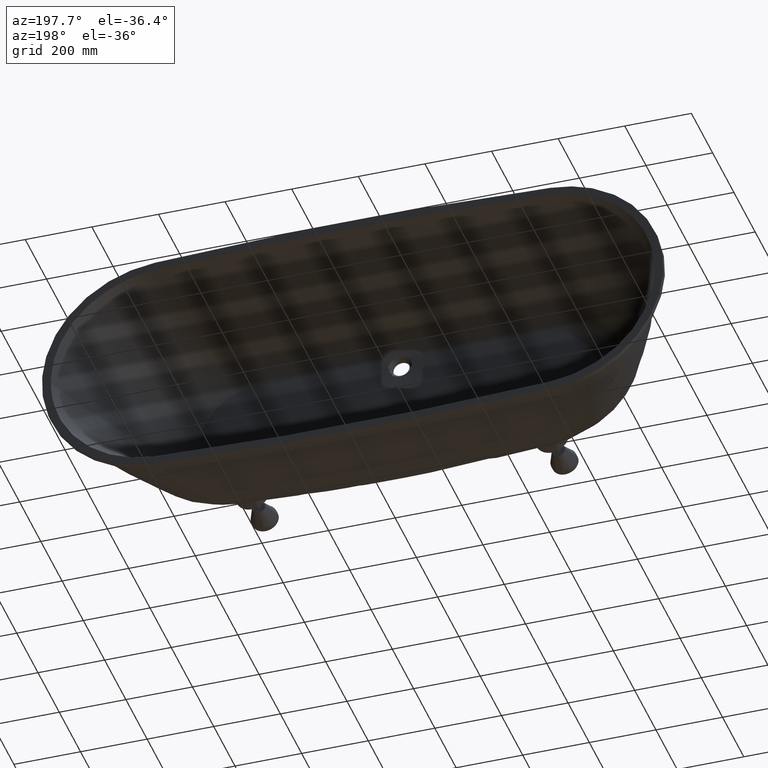
[diagram: clean part render]
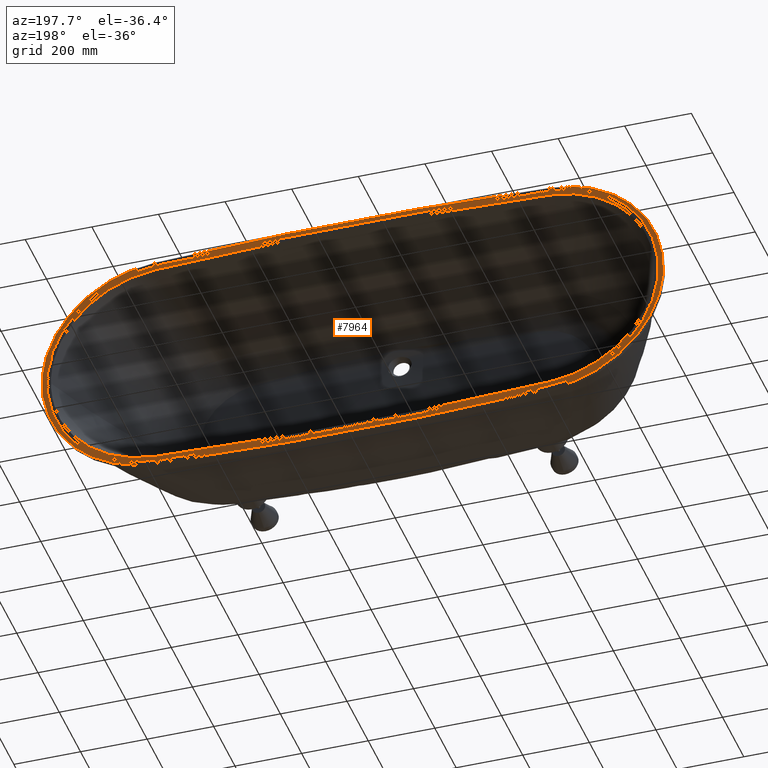
[diagram: same view with one face highlighted and labeled with its STEP entity id]
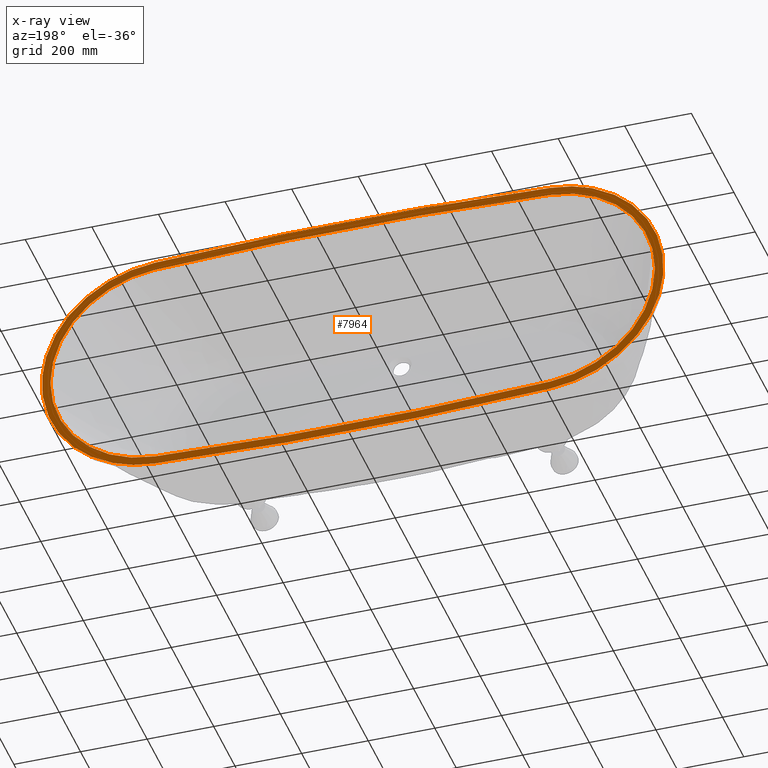
[diagram: x-ray of the same camera — body ghosted, the highlighted face saturated]
A machine part, auxiliary view. The second image highlights one B-rep face of the part: STEP entity #7964.
The next image is the same camera in x-ray: the body ghosted, the highlighted face saturated — about 0% of this face is hidden behind the body in this view.
In plain terms, the highlighted planar face has unit normal (0, -1, 0).
Its self-contained STEP definition (entity closure, byte-faithful):
#66 = VERTEX_POINT ( 'NONE', #52533 ) ;
#597 = DIRECTION ( 'NONE',  ( 0.0000000000000000000, 0.0000000000000000000, -1.000000000000000000 ) ) ;
#667 = AXIS2_PLACEMENT_3D ( 'NONE', #3315, #3133, #3019 ) ;
#966 = DIRECTION ( 'NONE',  ( 0.0000000000000000000, -0.0000000000000000000, -1.000000000000000000 ) ) ;
#1107 = DIRECTION ( 'NONE',  ( 0.0000000000000000000, -1.000000000000000000, 0.0000000000000000000 ) ) ;
#1222 = CARTESIAN_POINT ( 'NONE',  ( 287.7500000000023900, 0.0000000000000000000, 5338.064516129097700 ) ) ;
#1293 = CARTESIAN_POINT ( 'NONE',  ( -593.3706162946290300, 0.0000000000000000000, 331.5186888747758800 ) ) ;
#1669 = PLANE ( 'NONE',  #5775 ) ;
#1819 = CARTESIAN_POINT ( 'NONE',  ( -594.7201369327197000, 0.0000000000000000000, -356.6657313408666700 ) ) ;
#2009 = CARTESIAN_POINT ( 'NONE',  ( -495.7671757477767800, -0.0000000000000000000, -361.9760502489224300 ) ) ;
#2201 = CARTESIAN_POINT ( 'NONE',  ( -396.6916064308190400, -0.0000000000000000000, -365.9590819760921400 ) ) ;
#2779 = CIRCLE ( 'NONE', #52749, 332.0000000000008000 ) ;
#3019 = DIRECTION ( 'NONE',  ( 0.0000000000000000000, 0.0000000000000000000, 1.000000000000000000 ) ) ;
#3133 = DIRECTION ( 'NONE',  ( 0.0000000000000000000, 1.000000000000000000, 0.0000000000000000000 ) ) ;
#3315 = CARTESIAN_POINT ( 'NONE',  ( 575.5000000000001100, 0.0000000000000000000, -4.718447854656915300E-013 ) ) ;
#3474 = CARTESIAN_POINT ( 'NONE',  ( -594.7215155686815300, 0.0000000000000000000, 356.6650128610604600 ) ) ;
#3526 = CARTESIAN_POINT ( 'NONE',  ( -597.6816627378618700, -0.0000000000000000000, 356.5059815177440900 ) ) ;
#3585 = CARTESIAN_POINT ( 'NONE',  ( -600.5216214964802900, -0.0000000000000000000, 356.3220992068080500 ) ) ;
#3650 = CARTESIAN_POINT ( 'NONE',  ( -603.2838882562247100, 0.0000000000000000000, 356.1101044707744400 ) ) ;
#3763 = CARTESIAN_POINT ( 'NONE',  ( -603.3297538721691400, -0.0000000000000000000, 356.1065761733557900 ) ) ;
#3830 = CARTESIAN_POINT ( 'NONE',  ( -603.4181139811441900, -0.0000000000000000000, 356.0997617713654800 ) ) ;
#4011 = CARTESIAN_POINT ( 'NONE',  ( -603.5506522259490800, -0.0000000000000000000, 356.0895155212858200 ) ) ;
#4123 = CARTESIAN_POINT ( 'NONE',  ( -603.8598946998892000, -0.0000000000000000000, 356.0654350747709600 ) ) ;
#4194 = CARTESIAN_POINT ( 'NONE',  ( -604.4783259253523500, -0.0000000000000000000, 356.0165840630903600 ) ) ;
#4306 = CARTESIAN_POINT ( 'NONE',  ( -605.7149734866080700, -0.0000000000000000000, 355.9161215651395200 ) ) ;
#4370 = CARTESIAN_POINT ( 'NONE',  ( -608.1874090504386500, -0.0000000000000000000, 355.7041546708632000 ) ) ;
#4488 = CARTESIAN_POINT ( 'NONE',  ( -610.3051660045540500, 0.0000000000000000000, 355.5035397928463700 ) ) ;
#4557 = CARTESIAN_POINT ( 'NONE',  ( -612.0691448390009600, 0.0000000000000000000, 355.3258446341437200 ) ) ;
#4745 = CARTESIAN_POINT ( 'NONE',  ( -612.4189917987304200, -0.0000000000000000000, 355.2900776043649700 ) ) ;
#4865 = CARTESIAN_POINT ( 'NONE',  ( -613.1214468381515400, -0.0000000000000000000, 355.2172153074503700 ) ) ;
#4941 = CARTESIAN_POINT ( 'NONE',  ( -614.1749417100855900, -0.0000000000000000000, 355.1063656266823600 ) ) ;
#5062 = CARTESIAN_POINT ( 'NONE',  ( -616.6317826008805700, -0.0000000000000000000, 354.8368227237837700 ) ) ;
#5143 = CARTESIAN_POINT ( 'NONE',  ( -621.5402091409355300, -0.0000000000000000000, 354.2541623268916200 ) ) ;
#5263 = CARTESIAN_POINT ( 'NONE',  ( -625.7384229040642400, 0.0000000000000000000, 353.6800398305386500 ) ) ;
#5456 = CARTESIAN_POINT ( 'NONE',  ( -629.2319293813993700, 0.0000000000000000000, 353.1601048063461700 ) ) ;
#5531 = CARTESIAN_POINT ( 'NONE',  ( -629.9264927524602600, -0.0000000000000000000, 353.0546376831398400 ) ) ;
#5614 = CARTESIAN_POINT ( 'NONE',  ( -295.9434574592086700, 0.0000000000000000000, -368.6563225309114400 ) ) ;
#5723 = CARTESIAN_POINT ( 'NONE',  ( -631.3184273612128000, -0.0000000000000000000, 352.8390936218692100 ) ) ;
#5775 = AXIS2_PLACEMENT_3D ( 'NONE', #1222, #1107, #966 ) ;
#5803 = CARTESIAN_POINT ( 'NONE',  ( -294.3968672629262100, -0.0000000000000000000, -368.6974038649461800 ) ) ;
#5849 = CARTESIAN_POINT ( 'NONE',  ( -633.4049992165673800, -0.0000000000000000000, 352.5096875967373100 ) ) ;
#5919 = CARTESIAN_POINT ( 'NONE',  ( -638.2643564746379100, -0.0000000000000000000, 351.6984440055164800 ) ) ;
#5998 = CARTESIAN_POINT ( 'NONE',  ( -291.3002636388101200, -0.0000000000000000000, -368.7790098816295200 ) ) ;
#6042 = CARTESIAN_POINT ( 'NONE',  ( -647.9458293730853000, -0.0000000000000000000, 349.9054386927453500 ) ) ;
#6115 = CARTESIAN_POINT ( 'NONE',  ( -656.1803919414234100, 0.0000000000000000000, 348.0762602012417800 ) ) ;
#6194 = CARTESIAN_POINT ( 'NONE',  ( -286.6553162974423100, -0.0000000000000000000, -368.9004475807663000 ) ) ;
#6236 = CARTESIAN_POINT ( 'NONE',  ( -662.3243924810821000, 0.0000000000000000000, 346.5582179351916400 ) ) ;
#6305 = CARTESIAN_POINT ( 'NONE',  ( -663.0096332170122700, -0.0000000000000000000, 346.3867632915915400 ) ) ;
#6423 = CARTESIAN_POINT ( 'NONE',  ( -664.3758442071400600, -0.0000000000000000000, 346.0406145393878300 ) ) ;
#6492 = CARTESIAN_POINT ( 'NONE',  ( -666.4234642198991900, -0.0000000000000000000, 345.5153686653741300 ) ) ;
#6606 = CARTESIAN_POINT ( 'NONE',  ( -671.1893689426513000, -0.0000000000000000000, 344.2476357393775900 ) ) ;
#6674 = CARTESIAN_POINT ( 'NONE',  ( -680.6736771600751600, -0.0000000000000000000, 341.5435330075411600 ) ) ;
#6753 = CIRCLE ( 'NONE', #12101, 11023.62903225819700 ) ;
#6790 = CARTESIAN_POINT ( 'NONE',  ( -688.7216535268730700, 0.0000000000000000000, 338.9366388719427600 ) ) ;
#6859 = CARTESIAN_POINT ( 'NONE',  ( -694.2173148855545200, 0.0000000000000000000, 337.0118987481245700 ) ) ;
#6976 = CARTESIAN_POINT ( 'NONE',  ( -694.3864720223782600, -0.0000000000000000000, 336.9525149667280700 ) ) ;
#7039 = CARTESIAN_POINT ( 'NONE',  ( -694.7220077340770100, -0.0000000000000000000, 336.8344404526669700 ) ) ;
#7160 = CARTESIAN_POINT ( 'NONE',  ( -695.2251546838120900, -0.0000000000000000000, 336.6569634072062600 ) ) ;
#7227 = CARTESIAN_POINT ( 'NONE',  ( -696.3980679085067300, -0.0000000000000000000, 336.2402933805560700 ) ) ;
#7294 = CARTESIAN_POINT ( 'NONE',  ( -698.7395090591458000, -0.0000000000000000000, 335.3967256449386700 ) ) ;
#7349 = CARTESIAN_POINT ( 'NONE',  ( -703.4048501654203800, -0.0000000000000000000, 333.6686794444562500 ) ) ;
#7415 = CARTESIAN_POINT ( 'NONE',  ( -712.6653675979605400, -0.0000000000000000000, 330.0489441264924200 ) ) ;
#7435 = VERTEX_POINT ( 'NONE', #1293 ) ;
#7541 = CARTESIAN_POINT ( 'NONE',  ( -720.4826714886911500, 0.0000000000000000000, 326.6657831391016800 ) ) ;
#7597 = CARTESIAN_POINT ( 'NONE',  ( -725.8019384435601800, 0.0000000000000000000, 324.2112833826293500 ) ) ;
#7660 = CARTESIAN_POINT ( 'NONE',  ( -725.9608337083825500, -0.0000000000000000000, 324.1378197782972800 ) ) ;
#7773 = CARTESIAN_POINT ( 'NONE',  ( -726.2807433352035100, -0.0000000000000000000, 323.9896274344625900 ) ) ;
#7838 = CARTESIAN_POINT ( 'NONE',  ( -726.7604322297113400, -0.0000000000000000000, 323.7669889597066200 ) ) ;
#7952 = CARTESIAN_POINT ( 'NONE',  ( -727.8784774968253300, -0.0000000000000000000, 323.2450494722542100 ) ) ;
#7964 = ADVANCED_FACE ( 'NONE', ( #33468, #34849 ), #1669, .F. ) ;
#8066 = CARTESIAN_POINT ( 'NONE',  ( -730.1096527507731900, -0.0000000000000000000, 322.1913716452540400 ) ) ;
#8129 = CARTESIAN_POINT ( 'NONE',  ( -734.5523421375470400, -0.0000000000000000000, 320.0448205828835200 ) ) ;
#8197 = CARTESIAN_POINT ( 'NONE',  ( -743.3590764266067500, -0.0000000000000000000, 315.5949368246496600 ) ) ;
#8200 = CARTESIAN_POINT ( 'NONE',  ( 4.687092838786211300E-012, 0.0000000000000000000, 10676.12903225819500 ) ) ;
#8311 = CARTESIAN_POINT ( 'NONE',  ( -750.7728867009644800, 0.0000000000000000000, 311.5119822316074200 ) ) ;
#8422 = ORIENTED_EDGE ( 'NONE', *, *, #29064, .F. ) ;
#8491 = CARTESIAN_POINT ( 'NONE',  ( -756.2658348486000900, 0.0000000000000000000, 308.3153820295476600 ) ) ;
#8676 = CARTESIAN_POINT ( 'NONE',  ( -756.8718848319335800, -0.0000000000000000000, 307.9602945925871600 ) ) ;
#8747 = CARTESIAN_POINT ( 'NONE',  ( -758.0847655493365700, -0.0000000000000000000, 307.2448674375581800 ) ) ;
#8865 = CARTESIAN_POINT ( 'NONE',  ( -759.9005897875498500, -0.0000000000000000000, 306.1665647871743700 ) ) ;
#8902 = B_SPLINE_CURVE_WITH_KNOTS ( 'NONE', 3,
 ( #31064, #30942, #30296, #30171, #30102, #29981, #29913, #29796, #29665, #29614, #29547, #29485, #29437, #29370, #29308, #29255, #29192, #29073, #29010, #28824, #28761, #28706, #28638, #28577, #28461, #28399, #28276, #28096, #28027, #27905, #27841, #27718, #27650, #27526, #27458, #27339, #27273, #27155, #27084, #26961, #26886, #26695, #26582, #26505, #26386, #26309, #26193, #26010, #25938, #25827, #25756, #25637, #25568, #25456, #25327, #25281, #25154, #25108, #25042, #24930, #24689, #24571, #24506, #24387, #24256, #24136, #24070, #23948, #23882, #23767, #23579, #23513, #23392, #23323, #23198, #23129, #23005, #22936, #22814, #22740, #22615, #22539, #22420, #22346, #22231, #22155, #22041, #21964, #21846, #21779, #21591, #21292, #21224, #21111, #20973, #20923, #20753, #20628, #20570, #20400, #20330, #20267, #20210, #20145, #20079, #20027, #19961, #19896, #19779, #19603, #19535, #19416, #19351, #19229, #19162, #19040, #18970, #18851, #18780, #18666, #18595, #18479, #18410, #18296, #18228, #18111, #18035, #17919, #17853, #17739, #17664, #17545, #17476, #17366, #17300, #17187, #17012, #16834, #16767, #16705, #16654, #16532, #16480, #16358, #16306, #16245, #16186, #16130, #16068, #16012, #15890, #15772, #15707, #15648, #15531, #15465, #15354, #15176, #15109, #14994, #14928, #14814, #14747, #14625, #14555, #14439, #14370, #14245, #14170, #14049, #13975, #13859, #13671, #13476, #13408, #13293, #13221, #13113, #12937, #12863, #12747, #12684, #12568, #12503, #12441, #12390, #12212, #12040, #11971, #11909, #11852, #11784, #11720, #11664, #11533, #11475, #11409, #11344, #11229, #11158, #11045, #10977, #10861, #10794, #10671, #10601, #10481, #10413, #10292, #10218, #10090, #10017, #9897, #9825, #9632, #9517, #9438, #9321, #9247, #9127, #9055, #8938, #8865, #8747, #8676, #8491, #8311, #8197, #8129, #8066, #7952, #7838, #7773, #7660, #7597, #7541, #7415, #7349, #7294, #7227, #7160, #7039, #6976, #6859, #6790, #6674, #6606, #6492, #6423, #6305, #6236, #6115, #6042, #5919, #5849, #5723, #5531, #5456, #5263, #5143, #5062, #4941, #4865, #4745, #4557, #4488, #4370, #4306, #4194, #4123, #4011, #3830, #3763, #3650, #3585, #3526, #3474 ),
 .UNSPECIFIED., .F., .F.,
 ( 4, 1, 1, 1, 1, 1, 2, 2, 1, 1, 2, 2, 1, 1, 2, 2, 1, 1, 1, 2, 2, 1, 1, 1, 1, 1, 2, 2, 1, 1, 1, 1, 1, 2, 2, 1, 1, 1, 2, 2, 1, 1, 1, 1, 2, 2, 1, 1, 1, 2, 2, 1, 1, 1, 1, 1, 2, 2, 1, 1, 2, 2, 1, 1, 1, 1, 1, 2, 2, 1, 1, 1, 1, 2, 2, 1, 1, 1, 1, 2, 2, 1, 1, 1, 1, 2, 2, 1, 1, 1, 1, 2, 2, 1, 1, 1, 1, 1, 2, 2, 2, 2, 1, 1, 1, 1, 1, 2, 2, 1, 1, 1, 1, 2, 2, 1, 1, 1, 1, 2, 2, 1, 1, 1, 1, 2, 2, 1, 1, 1, 1, 2, 2, 1, 1, 1, 1, 1, 2, 2, 1, 1, 2, 2, 1, 1, 1, 1, 1, 2, 2, 1, 1, 1, 2, 2, 1, 1, 1, 1, 1, 2, 2, 1, 1, 1, 2, 2, 1, 1, 1, 1, 1, 2, 2, 1, 1, 1, 1, 1, 2, 2, 1, 1, 1, 2, 2, 1, 1, 1, 2, 2, 1, 1, 1, 2, 2, 1, 1, 1, 1, 1, 2, 2, 4 ),
 ( 0.0000000000000000000, 0.003906249999997633000, 0.005859374999996292900, 0.006835937499995467200, 0.007324218749995216500, 0.007568359374995249500, 0.007690429687495107200, 0.007812499999994965800, 0.01171874999999622900, 0.01367187499999685300, 0.01464843749999716500, 0.01562499999999747800, 0.02343750000000153300, 0.02734375000000355300, 0.02929687500000456200, 0.03125000000000557200, 0.04687500000001334300, 0.05468750000001723600, 0.05859375000001903300, 0.06054687500001980400, 0.06250000000002056700, 0.07812500000002679800, 0.08593750000002978200, 0.08984375000003129400, 0.09179687500003208500, 0.09277343750003244600, 0.09326171875003248800, 0.09375000000003251600, 0.1093750000000340300, 0.1171875000000346100, 0.1210937500000349200, 0.1230468750000348900, 0.1240234375000350300, 0.1245117187500350800, 0.1250000000000351400, 0.1406250000000358900, 0.1484375000000360800, 0.1523437500000361900, 0.1542968750000364200, 0.1562500000000366700, 0.1718750000000377500, 0.1796875000000382700, 0.1835937500000386900, 0.1855468750000390000, 0.1865234375000391600, 0.1875000000000393000, 0.2031250000000416600, 0.2109375000000429700, 0.2148437500000437400, 0.2167968750000439900, 0.2187500000000442400, 0.2343750000000466300, 0.2421875000000478500, 0.2460937500000484300, 0.2480468750000487400, 0.2490234375000488500, 0.2495117187500489300, 0.2500000000000489600, 0.2656250000000505700, 0.2734375000000514000, 0.2773437500000518500, 0.2812500000000522400, 0.2968750000000532900, 0.3046875000000538500, 0.3085937500000540700, 0.3105468750000542900, 0.3115234375000544000, 0.3120117187500544600, 0.3125000000000545100, 0.3281250000000542300, 0.3359375000000540700, 0.3398437500000539600, 0.3417968750000539000, 0.3427734375000537900, 0.3437500000000537300, 0.3593750000000528500, 0.3671875000000524000, 0.3710937500000521200, 0.3730468750000520100, 0.3740234375000519000, 0.3750000000000517900, 0.3906250000000505700, 0.3984375000000500200, 0.4023437500000496800, 0.4042968750000495700, 0.4052734375000495200, 0.4062500000000494600, 0.4218750000000495700, 0.4296875000000496800, 0.4335937500000497400, 0.4355468750000497900, 0.4365234375000497900, 0.4375000000000497900, 0.4531250000000495700, 0.4609375000000494000, 0.4648437500000494000, 0.4667968750000492900, 0.4677734375000492900, 0.4682617187500492400, 0.4687500000000492400, 0.4843750000000485700, 0.5000000000000478500, 0.5156250000000471800, 0.5234375000000467400, 0.5273437500000466300, 0.5292968750000465200, 0.5302734375000465200, 0.5307617187500465200, 0.5312500000000465200, 0.5468750000000459600, 0.5546875000000457400, 0.5585937500000455200, 0.5605468750000456300, 0.5615234375000455200, 0.5625000000000455200, 0.5781250000000455200, 0.5859375000000454100, 0.5898437500000454100, 0.5917968750000454100, 0.5927734375000454100, 0.5937500000000453000, 0.6093750000000444100, 0.6171875000000439600, 0.6210937500000437400, 0.6230468750000436300, 0.6240234375000436300, 0.6250000000000436300, 0.6406250000000441900, 0.6484375000000446300, 0.6523437500000448500, 0.6542968750000448500, 0.6552734375000450800, 0.6562500000000451900, 0.6718750000000484100, 0.6796875000000500700, 0.6835937500000510700, 0.6855468750000515100, 0.6865234375000517400, 0.6870117187500517400, 0.6875000000000518500, 0.7031250000000531800, 0.7109375000000539600, 0.7148437500000542900, 0.7187500000000547300, 0.7343750000000567300, 0.7421875000000576200, 0.7460937500000582900, 0.7480468750000585100, 0.7490234375000586200, 0.7495117187500585100, 0.7500000000000584000, 0.7656250000000597300, 0.7734375000000605100, 0.7773437500000607300, 0.7792968750000609500, 0.7812500000000610600, 0.7968750000000615100, 0.8046875000000615100, 0.8085937500000617300, 0.8105468750000617300, 0.8115234375000619500, 0.8120117187500618400, 0.8125000000000617300, 0.8281250000000571800, 0.8359375000000547300, 0.8398437500000535100, 0.8417968750000530700, 0.8437500000000527400, 0.8593750000000487400, 0.8671875000000465200, 0.8710937500000456300, 0.8730468750000451900, 0.8740234375000448500, 0.8745117187500445200, 0.8750000000000441900, 0.8906250000000357500, 0.8984375000000313100, 0.9023437500000290900, 0.9042968750000277600, 0.9052734375000273100, 0.9057617187500272000, 0.9062500000000272000, 0.9218750000000263100, 0.9296875000000257600, 0.9335937500000255400, 0.9355468750000254200, 0.9375000000000252000, 0.9531250000000244200, 0.9609375000000238700, 0.9648437500000236500, 0.9667968750000234300, 0.9687500000000233100, 0.9765625000000233100, 0.9804687500000233100, 0.9824218750000234300, 0.9833984375000234300, 0.9843750000000233100, 0.9882812500000224300, 0.9902343750000217600, 0.9912109375000214300, 0.9916992187500210900, 0.9919433593750209800, 0.9920654296875207600, 0.9921875000000206500, 1.000000000000000000 ),
 .UNSPECIFIED. ) ;
#8938 = CARTESIAN_POINT ( 'NONE',  ( -764.1130351448169900, -0.0000000000000000000, 303.6143918447302800 ) ) ;
#9055 = CARTESIAN_POINT ( 'NONE',  ( -772.4400143984211100, -0.0000000000000000000, 298.3655122603110500 ) ) ;
#9127 = CARTESIAN_POINT ( 'NONE',  ( -779.4095769684894300, 0.0000000000000000000, 293.6187005601893800 ) ) ;
#9247 = CARTESIAN_POINT ( 'NONE',  ( -784.1242208018236400, 0.0000000000000000000, 290.2417053238686400 ) ) ;
#9321 = CARTESIAN_POINT ( 'NONE',  ( -784.2688523987733300, -0.0000000000000000000, 290.1379473392748300 ) ) ;
#9438 = CARTESIAN_POINT ( 'NONE',  ( -784.5561121809636200, -0.0000000000000000000, 289.9315432367263800 ) ) ;
#9517 = CARTESIAN_POINT ( 'NONE',  ( -784.9867620445404600, -0.0000000000000000000, 289.6216241539292500 ) ) ;
#9558 = CIRCLE ( 'NONE', #43959, 11023.62903225819700 ) ;
#9632 = CARTESIAN_POINT ( 'NONE',  ( -785.9899330582576300, -0.0000000000000000000, 288.8962891245725500 ) ) ;
#9783 = CARTESIAN_POINT ( 'NONE',  ( -275.8168124978956800, -0.0000000000000000000, -369.1770029308830800 ) ) ;
#9825 = CARTESIAN_POINT ( 'NONE',  ( -787.9895604138449700, -0.0000000000000000000, 287.4368570545466900 ) ) ;
#9897 = CARTESIAN_POINT ( 'NONE',  ( -791.9619564376286000, -0.0000000000000000000, 284.4829448692476600 ) ) ;
#9974 = CARTESIAN_POINT ( 'NONE',  ( -254.1386315533806300, -0.0000000000000000000, -369.7029165062797900 ) ) ;
#10017 = CARTESIAN_POINT ( 'NONE',  ( -799.7993137356370400, -0.0000000000000000000, 278.4349283176617900 ) ) ;
#10090 = CARTESIAN_POINT ( 'NONE',  ( -806.3328747061141300, 0.0000000000000000000, 273.0105846774623600 ) ) ;
#10149 = VERTEX_POINT ( 'NONE', #21156 ) ;
#10218 = CARTESIAN_POINT ( 'NONE',  ( -811.1409585057776900, 0.0000000000000000000, 268.8221622207506700 ) ) ;
#10292 = CARTESIAN_POINT ( 'NONE',  ( -811.6761709723637100, -0.0000000000000000000, 268.3531318975753900 ) ) ;
#10413 = CARTESIAN_POINT ( 'NONE',  ( -812.7411319108318800, -0.0000000000000000000, 267.4142399740406400 ) ) ;
#10481 = CARTESIAN_POINT ( 'NONE',  ( -814.3340902571191000, -0.0000000000000000000, 266.0014207613462000 ) ) ;
#10558 = CARTESIAN_POINT ( 'NONE',  ( -210.7775762826663300, -0.0000000000000000000, -370.6459551577532900 ) ) ;
#10601 = CARTESIAN_POINT ( 'NONE',  ( -818.0196116352242400, -0.0000000000000000000, 262.6734733066434700 ) ) ;
#10671 = CARTESIAN_POINT ( 'NONE',  ( -825.2651286718374900, -0.0000000000000000000, 255.8921012302493000 ) ) ;
#10749 = CARTESIAN_POINT ( 'NONE',  ( -124.0366922144980300, -0.0000000000000000000, -372.0968784634040400 ) ) ;
#10794 = CARTESIAN_POINT ( 'NONE',  ( -831.2603848981973400, 0.0000000000000000000, 249.8643928785014100 ) ) ;
#10861 = CARTESIAN_POINT ( 'NONE',  ( -835.2834962027077400, 0.0000000000000000000, 245.6217541840407000 ) ) ;
#10935 = CARTESIAN_POINT ( 'NONE',  ( -49.65517982451504500, 0.0000000000000000000, -372.5945487300272700 ) ) ;
#10977 = CARTESIAN_POINT ( 'NONE',  ( -835.4034884644602200, -0.0000000000000000000, 245.4950255967672500 ) ) ;
#11045 = CARTESIAN_POINT ( 'NONE',  ( -835.6451021383835500, -0.0000000000000000000, 245.2394728562252600 ) ) ;
#11158 = CARTESIAN_POINT ( 'NONE',  ( -836.0072315976658500, -0.0000000000000000000, 244.8558844010673300 ) ) ;
#11229 = CARTESIAN_POINT ( 'NONE',  ( -836.8501629747775000, -0.0000000000000000000, 243.9590292619498700 ) ) ;
#11344 = CARTESIAN_POINT ( 'NONE',  ( -838.5278762841384200, -0.0000000000000000000, 242.1580573420456200 ) ) ;
#11409 = CARTESIAN_POINT ( 'NONE',  ( -841.8507051234163300, -0.0000000000000000000, 238.5270669355823800 ) ) ;
#11475 = CARTESIAN_POINT ( 'NONE',  ( -848.3659716841955300, -0.0000000000000000000, 231.1488998560107300 ) ) ;
#11533 = CARTESIAN_POINT ( 'NONE',  ( -853.7269582486728700, 0.0000000000000000000, 224.6255801878511700 ) ) ;
#11664 = CARTESIAN_POINT ( 'NONE',  ( -858.0702650354736500, 0.0000000000000000000, 219.0788268771066500 ) ) ;
#11720 = CARTESIAN_POINT ( 'NONE',  ( -858.9344240453311800, -0.0000000000000000000, 217.9617292623473200 ) ) ;
#11784 = CARTESIAN_POINT ( 'NONE',  ( -860.6465344308129500, -0.0000000000000000000, 215.7212388623453300 ) ) ;
#11852 = CARTESIAN_POINT ( 'NONE',  ( -863.1939900273006300, -0.0000000000000000000, 212.3464611392475400 ) ) ;
#11909 = CARTESIAN_POINT ( 'NONE',  ( -868.9930832136249100, -0.0000000000000000000, 204.3736849236893000 ) ) ;
#11971 = CARTESIAN_POINT ( 'NONE',  ( -873.7152147353647300, 0.0000000000000000000, 197.3713712617888800 ) ) ;
#12040 = CARTESIAN_POINT ( 'NONE',  ( -876.8477752570162200, 0.0000000000000000000, 192.4800489422111700 ) ) ;
#12101 = AXIS2_PLACEMENT_3D ( 'NONE', #50502, #50378, #50328 ) ;
#12212 = CARTESIAN_POINT ( 'NONE',  ( -876.9442007956745300, -0.0000000000000000000, 192.3292403206243600 ) ) ;
#12390 = CARTESIAN_POINT ( 'NONE',  ( -877.1352113869243100, -0.0000000000000000000, 192.0300060867286600 ) ) ;
#12441 = CARTESIAN_POINT ( 'NONE',  ( -877.4213862499765400, -0.0000000000000000000, 191.5809510120465700 ) ) ;
#12503 = CARTESIAN_POINT ( 'NONE',  ( -878.0867404303412500, -0.0000000000000000000, 190.5317297709419200 ) ) ;
#12568 = CARTESIAN_POINT ( 'NONE',  ( -879.4079001240467100, -0.0000000000000000000, 188.4275830213091500 ) ) ;
#12571 = DIRECTION ( 'NONE',  ( 0.0000000000000000000, 0.0000000000000000000, -1.000000000000000000 ) ) ;
#12684 = CARTESIAN_POINT ( 'NONE',  ( -882.0120248433596500, -0.0000000000000000000, 184.1964724523827500 ) ) ;
#12747 = CARTESIAN_POINT ( 'NONE',  ( -887.0674956095875800, -0.0000000000000000000, 175.6429830358693500 ) ) ;
#12863 = CARTESIAN_POINT ( 'NONE',  ( -891.1388499708182300, 0.0000000000000000000, 168.1549607725848700 ) ) ;
#12937 = CARTESIAN_POINT ( 'NONE',  ( -893.8990480037985000, 0.0000000000000000000, 162.7770611581285300 ) ) ;
#13113 = CARTESIAN_POINT ( 'NONE',  ( -894.0590114678246900, -0.0000000000000000000, 162.4642486974680700 ) ) ;
#13221 = CARTESIAN_POINT ( 'NONE',  ( -894.3798968720715300, -0.0000000000000000000, 161.8344688703013800 ) ) ;
#13293 = CARTESIAN_POINT ( 'NONE',  ( -894.8597823284870900, -0.0000000000000000000, 160.8891787991899500 ) ) ;
#13408 = CARTESIAN_POINT ( 'NONE',  ( -895.9694165104405100, -0.0000000000000000000, 158.6791596540655900 ) ) ;
#13476 = CARTESIAN_POINT ( 'NONE',  ( -898.1482906756141300, -0.0000000000000000000, 154.2417521137045600 ) ) ;
#13671 = CARTESIAN_POINT ( 'NONE',  ( -902.3444622110289400, -0.0000000000000000000, 145.2974600325035500 ) ) ;
#13859 = CARTESIAN_POINT ( 'NONE',  ( -905.6641918786447100, 0.0000000000000000000, 137.5118205335215600 ) ) ;
#13975 = CARTESIAN_POINT ( 'NONE',  ( -907.8848667973087500, 0.0000000000000000000, 131.9407492689792600 ) ) ;
#14049 = CARTESIAN_POINT ( 'NONE',  ( -908.0140271689264200, -0.0000000000000000000, 131.6153192426000400 ) ) ;
#14133 = CARTESIAN_POINT ( 'NONE',  ( 6.147046062320145900, 0.0000000000000000000, -372.5948122894565100 ) ) ;
#14170 = CARTESIAN_POINT ( 'NONE',  ( -908.2723526608297100, -0.0000000000000000000, 130.9616439285154900 ) ) ;
#14245 = CARTESIAN_POINT ( 'NONE',  ( -908.6583780825778800, -0.0000000000000000000, 129.9805957440671900 ) ) ;
#14331 = CARTESIAN_POINT ( 'NONE',  ( 12.34938858727069900, -0.0000000000000000000, -372.5896593718810000 ) ) ;
#14370 = CARTESIAN_POINT ( 'NONE',  ( -909.5488643539134700, -0.0000000000000000000, 127.6877368204479000 ) ) ;
#14439 = CARTESIAN_POINT ( 'NONE',  ( -911.2888780456067900, -0.0000000000000000000, 123.0870330002330900 ) ) ;
#14513 = CARTESIAN_POINT ( 'NONE',  ( 24.75129827887161900, -0.0000000000000000000, -372.5689890999162200 ) ) ;
#14555 = CARTESIAN_POINT ( 'NONE',  ( -914.6050700250833600, -0.0000000000000000000, 113.8256814679110000 ) ) ;
#14625 = CARTESIAN_POINT ( 'NONE',  ( -917.1666596007877400, 0.0000000000000000000, 105.7846191969599900 ) ) ;
#14707 = CARTESIAN_POINT ( 'NONE',  ( 43.35348266216378500, -0.0000000000000000000, -372.5224370531988700 ) ) ;
#14747 = CARTESIAN_POINT ( 'NONE',  ( -918.8484902232702300, 0.0000000000000000000, 100.0403407473129100 ) ) ;
#14814 = CARTESIAN_POINT ( 'NONE',  ( -918.9479345546354800, -0.0000000000000000000, 99.69882712562152000 ) ) ;
#14928 = CARTESIAN_POINT ( 'NONE',  ( -919.1447740784867600, -0.0000000000000000000, 99.01907402265473500 ) ) ;
#14994 = CARTESIAN_POINT ( 'NONE',  ( -919.4384973436608600, -0.0000000000000000000, 97.99910361926112000 ) ) ;
#15066 = CARTESIAN_POINT ( 'NONE',  ( 86.75381847774819700, -0.0000000000000000000, -372.3049891394708800 ) ) ;
#15109 = CARTESIAN_POINT ( 'NONE',  ( -920.1130994848565500, -0.0000000000000000000, 95.61678743539958700 ) ) ;
#15176 = CARTESIAN_POINT ( 'NONE',  ( -921.4192951903921800, -0.0000000000000000000, 90.84261409724123800 ) ) ;
#15354 = CARTESIAN_POINT ( 'NONE',  ( -923.8596522940557600, -0.0000000000000000000, 81.25610353918986600 ) ) ;
#15465 = CARTESIAN_POINT ( 'NONE',  ( -925.6564709987779900, 0.0000000000000000000, 72.97367069217043000 ) ) ;
#15531 = CARTESIAN_POINT ( 'NONE',  ( -926.7899517133863600, 0.0000000000000000000, 67.07605285460250900 ) ) ;
#15648 = CARTESIAN_POINT ( 'NONE',  ( -926.8566899695209700, -0.0000000000000000000, 66.72600596637717300 ) ) ;
#15707 = CARTESIAN_POINT ( 'NONE',  ( -926.9885358599498200, -0.0000000000000000000, 66.02879485924049200 ) ) ;
#15772 = CARTESIAN_POINT ( 'NONE',  ( -927.1847369937351000, -0.0000000000000000000, 64.98273267595088500 ) ) ;
#15890 = CARTESIAN_POINT ( 'NONE',  ( -927.6315657262258600, -0.0000000000000000000, 62.54020225685042100 ) ) ;
#16012 = CARTESIAN_POINT ( 'NONE',  ( -928.4813275391735500, -0.0000000000000000000, 57.64826678627921600 ) ) ;
#16068 = CARTESIAN_POINT ( 'NONE',  ( -930.0052685569306700, -0.0000000000000000000, 47.83689731566154500 ) ) ;
#16130 = CARTESIAN_POINT ( 'NONE',  ( -931.0105049582013000, 0.0000000000000000000, 39.38001171889209900 ) ) ;
#16186 = CARTESIAN_POINT ( 'NONE',  ( -931.5636472205382000, 0.0000000000000000000, 33.54429688366853000 ) ) ;
#16245 = CARTESIAN_POINT ( 'NONE',  ( -931.5799992327374600, -0.0000000000000000000, 33.37040594142102600 ) ) ;
#16306 = CARTESIAN_POINT ( 'NONE',  ( -931.6127234441393100, -0.0000000000000000000, 33.01966043661999400 ) ) ;
#16358 = CARTESIAN_POINT ( 'NONE',  ( -931.6614200737080900, -0.0000000000000000000, 32.49352746035575000 ) ) ;
#16480 = CARTESIAN_POINT ( 'NONE',  ( -931.7723177299611700, -0.0000000000000000000, 31.26578081565158100 ) ) ;
#16532 = CARTESIAN_POINT ( 'NONE',  ( -931.9832017915063000, -0.0000000000000000000, 28.80987539252669900 ) ) ;
#16654 = CARTESIAN_POINT ( 'NONE',  ( -932.3613249107506800, -0.0000000000000000000, 23.89641601143995300 ) ) ;
#16705 = CARTESIAN_POINT ( 'NONE',  ( -932.9429911338515900, -0.0000000000000000000, 14.06290310991083500 ) ) ;
#16767 = CARTESIAN_POINT ( 'NONE',  ( -933.1422821558479700, -0.0000000000000000000, 5.622873526841765100 ) ) ;
#16793 = CARTESIAN_POINT ( 'NONE',  ( -594.7215155686815300, 0.0000000000000000000, 356.6650128610604600 ) ) ;
#16834 = CARTESIAN_POINT ( 'NONE',  ( -933.1419768283982400, 0.0000000000000000000, -5.640547462937780300 ) ) ;
#17012 = CARTESIAN_POINT ( 'NONE',  ( -933.0087845315571300, -0.0000000000000000000, -11.26940705788970100 ) ) ;
#17169 = EDGE_LOOP ( 'NONE', ( #18636, #41730, #43642, #37445 ) ) ;
#17187 = CARTESIAN_POINT ( 'NONE',  ( -932.4763208647627800, 0.0000000000000000000, -22.51430031554982500 ) ) ;
#17285 = CARTESIAN_POINT ( 'NONE',  ( 594.7215155686782300, 0.0000000000000000000, 356.6650128610603500 ) ) ;
#17300 = CARTESIAN_POINT ( 'NONE',  ( -932.0770494626229900, -0.0000000000000000000, -28.13152133365223400 ) ) ;
#17366 = CARTESIAN_POINT ( 'NONE',  ( -931.5281037739002800, 0.0000000000000000000, -33.91889159750761700 ) ) ;
#17461 = CARTESIAN_POINT ( 'NONE',  ( 495.7730447081593800, -0.0000000000000000000, 361.9806673062024100 ) ) ;
#17476 = CARTESIAN_POINT ( 'NONE',  ( -931.5110477870625800, -0.0000000000000000000, -34.09730958336712100 ) ) ;
#17494 = EDGE_CURVE ( 'NONE', #54292, #48512, #36447, .T. ) ;
#17545 = CARTESIAN_POINT ( 'NONE',  ( -931.4769651891496100, -0.0000000000000000000, -34.45103948779225100 ) ) ;
#17548 = CARTESIAN_POINT ( 'NONE',  ( 907.5000000000009100, 0.0000000000000000000, 4.800847219765813600E-013 ) ) ;
#17664 = CARTESIAN_POINT ( 'NONE',  ( -931.4254493990454200, -0.0000000000000000000, -34.98157140651493100 ) ) ;
#17694 = CARTESIAN_POINT ( 'NONE',  ( 396.6973286435314800, -0.0000000000000000000, 365.9674409220432400 ) ) ;
#17739 = CARTESIAN_POINT ( 'NONE',  ( -931.3025026361551700, -0.0000000000000000000, -36.21903865146650500 ) ) ;
#17838 = CARTESIAN_POINT ( 'NONE',  ( 295.9443211049728600, 0.0000000000000000000, 368.6668632833720400 ) ) ;
#17853 = CARTESIAN_POINT ( 'NONE',  ( -931.0456360997908400, -0.0000000000000000000, -38.69221087975445500 ) ) ;
#17879 = CARTESIAN_POINT ( 'NONE',  ( 294.3981915077475300, -0.0000000000000000000, 368.7079634824986600 ) ) ;
#17919 = CARTESIAN_POINT ( 'NONE',  ( -930.4880109847284800, -0.0000000000000000000, -43.63150628988776700 ) ) ;
#18020 = CARTESIAN_POINT ( 'NONE',  ( 291.3019644098713500, -0.0000000000000000000, 368.7896213140783200 ) ) ;
#18035 = CARTESIAN_POINT ( 'NONE',  ( -929.1971925852614000, -0.0000000000000000000, -53.48190092436401200 ) ) ;
#18064 = CARTESIAN_POINT ( 'NONE',  ( 286.6575725322302900, -0.0000000000000000000, 368.9111361191102100 ) ) ;
#18111 = CARTESIAN_POINT ( 'NONE',  ( -927.7898028097056300, 0.0000000000000000000, -61.87676000684918900 ) ) ;
#18215 = CARTESIAN_POINT ( 'NONE',  ( 275.8202995352800100, -0.0000000000000000000, 369.1878670678262300 ) ) ;
#18228 = CARTESIAN_POINT ( 'NONE',  ( -926.6507751054103900, 0.0000000000000000000, -67.80029303987612400 ) ) ;
#18296 = CARTESIAN_POINT ( 'NONE',  ( -926.5838835841987000, -0.0000000000000000000, -68.14538929779642700 ) ) ;
#18375 = CARTESIAN_POINT ( 'NONE',  ( 173.5354457938609600, -0.0000000000000000000, -371.4347874264531100 ) ) ;
#18410 = CARTESIAN_POINT ( 'NONE',  ( -926.4484558486451500, -0.0000000000000000000, -68.83858658679882600 ) ) ;
#18438 = CARTESIAN_POINT ( 'NONE',  ( 254.1443190782275400, -0.0000000000000000000, 369.7141145798137200 ) ) ;
#18479 = CARTESIAN_POINT ( 'NONE',  ( -926.2437796606382100, -0.0000000000000000000, -69.87804043179565400 ) ) ;
#18554 = CARTESIAN_POINT ( 'NONE',  ( 247.8870503818614800, 0.0000000000000000000, -369.9426615829110600 ) ) ;
#18595 = CARTESIAN_POINT ( 'NONE',  ( -925.7554597958787800, -0.0000000000000000000, -72.30103811722862900 ) ) ;
#18621 = CARTESIAN_POINT ( 'NONE',  ( 210.7866203115163200, -0.0000000000000000000, 370.6577520620202200 ) ) ;
#18636 = ORIENTED_EDGE ( 'NONE', *, *, #38249, .T. ) ;
#18666 = CARTESIAN_POINT ( 'NONE',  ( -924.7358516953918300, -0.0000000000000000000, -77.13745500987070600 ) ) ;
#18762 = CARTESIAN_POINT ( 'NONE',  ( 124.0482713676667900, -0.0000000000000000000, 372.1095968593554600 ) ) ;
#18780 = CARTESIAN_POINT ( 'NONE',  ( -922.5247620105456000, -0.0000000000000000000, -86.77197488225590400 ) ) ;
#18851 = CARTESIAN_POINT ( 'NONE',  ( -920.3349020226108900, 0.0000000000000000000, -94.96445377933235900 ) ) ;
#18970 = CARTESIAN_POINT ( 'NONE',  ( -918.6446155204030200, 0.0000000000000000000, -100.7364436400340000 ) ) ;
#19001 = CARTESIAN_POINT ( 'NONE',  ( 49.66176985506385200, 0.0000000000000000000, 372.6075835420867300 ) ) ;
#19040 = CARTESIAN_POINT ( 'NONE',  ( -918.5456164410385300, -0.0000000000000000000, -101.0726623230066100 ) ) ;
#19162 = CARTESIAN_POINT ( 'NONE',  ( -918.3457279031521200, -0.0000000000000000000, -101.7478682657210200 ) ) ;
#19229 = CARTESIAN_POINT ( 'NONE',  ( -918.0444342555782700, -0.0000000000000000000, -102.7601356242001300 ) ) ;
#19304 = CARTESIAN_POINT ( 'NONE',  ( 298.9888151457105900, 0.0000000000000000000, -368.5747990125368000 ) ) ;
#19351 = CARTESIAN_POINT ( 'NONE',  ( -917.3311898593566400, -0.0000000000000000000, -105.1183019048318100 ) ) ;
#19385 = B_SPLINE_CURVE_WITH_KNOTS ( 'NONE', 3,
 ( #51221, #51114, #51049, #50994, #50942, #50876, #50818, #50808, #50771, #50704, #50639, #50630, #50588, #50515, #50454, #50445, #50407, #50390, #50342, #50278, #50233, #50214, #50156, #50086, #50038, #50018, #49961, #49899, #49845, #49826, #49771, #49708, #49659, #49641, #49584, #49518, #49472, #49451, #49397, #49285, #49265, #49206, #49142, #49091, #49072, #49019, #49000, #48956, #48908, #48888, #48836, #48816, #48767, #48720, #48697, #48647, #48627, #48576, #48525, #48504, #48449, #48433, #48382, #48328, #48309, #48255, #48238, #48188, #48120, #48066, #48051, #48002, #47933, #47876, #47858, #47808, #47745, #47690, #47674, #47622, #47507, #47492, #47442, #47378, #47370, #47325, #47309, #47257, #47193, #47185, #47140, #47124, #47077, #47019, #47011, #46966, #46894, #46833, #46824, #46782, #46715, #46655, #46646, #46602, #46538, #46481, #46473, #46431, #46362, #46302, #46293, #46257, #46242, #46193, #46132, #46122, #46082, #46065, #46010, #45945, #45898, #45882, #45828, #45763, #45714, #45694, #45640, #45586, #45532, #45512, #45456, #45394, #45343, #45322, #45266, #45204, #45157, #45136, #45085, #45027, #44980, #44960, #44905, #44837, #44789, #44769, #44707, #44687, #44644, #44596, #44576, #44503, #44454, #44400, #44379, #44326, #44310, #44259, #44210, #44189, #44136, #44119, #44066, #44017, #43996, #43937, #43920, #43866, #43796, #43743, #43726, #43682, #43619, #43567, #43549, #43502, #43439, #43323, #43258, #43203, #43185, #43136, #43074, #43065, #43020, #43003, #42951, #42885, #42876, #42834, #42817, #42767, #42709, #42702, #42657, #42587, #42527, #42518, #42471, #42404, #42348, #42339, #42302, #42235, #42174, #42164, #42125, #42057, #41992, #41984, #41947, #41932, #41880, #41813, #41804, #41763, #41746, #41693, #41627, #41580, #41561, #41510, #41442, #41393, #41375, #41321, #41260, #41203, #41184, #41128, #41064, #41006, #40987, #40928, #40865, #40817, #40797, #40744, #40677, #40623, #40603, #40544, #40480, #40429, #40408, #40346, #40326, #40279, #40231, #40210, #40156, #40136, #40086, #40036, #40014, #39955, #39937, #39888, #39835, #39814, #39740, #39685, #39632, #39610, #39552, #39535, #39481, #39412, #39360, #39344, #39289, #39158, #39143, #39092, #39025, #38964, #38948 ),
 .UNSPECIFIED., .F., .F.,
 ( 4, 1, 1, 1, 1, 1, 2, 2, 1, 1, 2, 2, 1, 1, 2, 2, 1, 1, 1, 2, 2, 1, 1, 1, 1, 1, 2, 2, 1, 1, 1, 1, 1, 2, 2, 1, 1, 1, 2, 2, 1, 1, 1, 1, 2, 2, 1, 1, 1, 2, 2, 1, 1, 1, 1, 1, 2, 2, 1, 1, 2, 2, 1, 1, 1, 1, 1, 2, 2, 1, 1, 1, 1, 2, 2, 1, 1, 1, 1, 2, 2, 1, 1, 1, 1, 2, 2, 1, 1, 1, 1, 2, 2, 1, 1, 1, 1, 1, 2, 2, 2, 2, 1, 1, 1, 1, 1, 2, 2, 1, 1, 1, 1, 2, 2, 1, 1, 1, 1, 2, 2, 1, 1, 1, 1, 2, 2, 1, 1, 1, 1, 2, 2, 1, 1, 1, 1, 1, 2, 2, 1, 1, 2, 2, 1, 1, 1, 1, 1, 2, 2, 1, 1, 1, 2, 2, 1, 1, 1, 1, 1, 2, 2, 1, 1, 1, 2, 2, 1, 1, 1, 1, 1, 2, 2, 1, 1, 1, 1, 1, 2, 2, 1, 1, 1, 2, 2, 1, 1, 1, 2, 2, 1, 1, 1, 2, 2, 1, 1, 1, 1, 1, 2, 2, 4 ),
 ( 0.0000000000000000000, 0.003906249999984342400, 0.005859374999976361800, 0.006835937499972377100, 0.007324218749970541800, 0.007568359374969775000, 0.007690429687469550400, 0.007812499999969324900, 0.01171874999996785200, 0.01367187499996726800, 0.01464843749996696700, 0.01562499999996666900, 0.02343749999996332800, 0.02734374999996166600, 0.02929687499996083300, 0.03124999999996000400, 0.04687499999995301000, 0.05468749999994949200, 0.05859374999994788200, 0.06054687499994694500, 0.06249999999994601500, 0.07812499999993864600, 0.08593749999993478800, 0.08984374999993285900, 0.09179687499993191600, 0.09277343749993144400, 0.09326171874993118000, 0.09374999999993091600, 0.1093749999999257700, 0.1171874999999233700, 0.1210937499999223100, 0.1230468749999219200, 0.1240234374999218700, 0.1245117187499216700, 0.1249999999999214800, 0.1406249999999210600, 0.1484374999999208700, 0.1523437499999208100, 0.1542968749999206500, 0.1562499999999204800, 0.1718749999999206500, 0.1796874999999207900, 0.1835937499999208100, 0.1855468749999207000, 0.1865234374999206500, 0.1874999999999205900, 0.2031249999999180900, 0.2109374999999167900, 0.2148437499999161800, 0.2167968749999158200, 0.2187499999999154600, 0.2343749999999119600, 0.2421874999999101600, 0.2460937499999092700, 0.2480468749999088200, 0.2490234374999086800, 0.2495117187499086000, 0.2499999999999084600, 0.2656249999999105200, 0.2734374999999116300, 0.2773437499999120700, 0.2812499999999124600, 0.2968749999999138500, 0.3046874999999145700, 0.3085937499999149600, 0.3105468749999151800, 0.3115234374999153500, 0.3120117187499153500, 0.3124999999999154000, 0.3281249999999187300, 0.3359374999999204000, 0.3398437499999211700, 0.3417968749999216200, 0.3427734374999218400, 0.3437499999999220600, 0.3593749999999272200, 0.3671874999999297800, 0.3710937499999310000, 0.3730468749999316700, 0.3740234374999319400, 0.3749999999999321700, 0.3906249999999369400, 0.3984374999999392700, 0.4023437499999404400, 0.4042968749999409900, 0.4052734374999412100, 0.4062499999999414400, 0.4218749999999464900, 0.4296874999999490400, 0.4335937499999503200, 0.4355468749999509800, 0.4365234374999513200, 0.4374999999999515900, 0.4531249999999567600, 0.4609374999999593700, 0.4648437499999607000, 0.4667968749999613600, 0.4677734374999616400, 0.4682617187499618100, 0.4687499999999619200, 0.4843749999999667500, 0.4999999999999715800, 0.5156249999999764600, 0.5234374999999789100, 0.5273437499999801300, 0.5292968749999806800, 0.5302734374999810200, 0.5307617187499811300, 0.5312499999999813500, 0.5468749999999857900, 0.5546874999999880100, 0.5585937499999891200, 0.5605468749999895600, 0.5615234374999899000, 0.5624999999999901200, 0.5781249999999952300, 0.5859374999999977800, 0.5898437499999991100, 0.5917968749999998900, 0.5927734375000002200, 0.5937500000000004400, 0.6093750000000065500, 0.6171875000000095500, 0.6210937500000111000, 0.6230468750000119900, 0.6240234375000123200, 0.6250000000000127700, 0.6406250000000207600, 0.6484375000000247600, 0.6523437500000267600, 0.6542968750000277600, 0.6552734375000283100, 0.6562500000000288700, 0.6718750000000360800, 0.6796875000000397500, 0.6835937500000415200, 0.6855468750000423000, 0.6865234375000427400, 0.6870117187500428500, 0.6875000000000429700, 0.7031250000000491800, 0.7109375000000522900, 0.7148437500000538500, 0.7187500000000554000, 0.7343750000000618400, 0.7421875000000650600, 0.7460937500000667200, 0.7480468750000676100, 0.7490234375000680600, 0.7495117187500682800, 0.7500000000000683900, 0.7656250000000716100, 0.7734375000000732700, 0.7773437500000739400, 0.7792968750000741600, 0.7812500000000745000, 0.7968750000000771600, 0.8046875000000782700, 0.8085937500000788300, 0.8105468750000788300, 0.8115234375000789400, 0.8120117187500788300, 0.8125000000000787100, 0.8281250000000759400, 0.8359375000000746100, 0.8398437500000740500, 0.8417968750000737200, 0.8437500000000732700, 0.8593750000000706100, 0.8671875000000692800, 0.8710937500000685000, 0.8730468750000680600, 0.8740234375000677200, 0.8745117187500676100, 0.8750000000000673900, 0.8906250000000570700, 0.8984375000000520700, 0.9023437500000494000, 0.9042968750000481800, 0.9052734375000476300, 0.9057617187500473000, 0.9062500000000470700, 0.9218750000000368600, 0.9296875000000317500, 0.9335937500000293100, 0.9355468750000280900, 0.9375000000000268700, 0.9531250000000171000, 0.9609375000000124300, 0.9648437500000101000, 0.9667968750000089900, 0.9687500000000077700, 0.9765625000000022200, 0.9804687499999994400, 0.9824218749999980000, 0.9833984374999970000, 0.9843749999999961100, 0.9882812499999927800, 0.9902343749999911200, 0.9912109374999902300, 0.9916992187499900100, 0.9919433593749899000, 0.9920654296874899000, 0.9921874999999900100, 1.000000000000000000 ),
 .UNSPECIFIED. ) ;
#19416 = CARTESIAN_POINT ( 'NONE',  ( -915.8637975260552400, -0.0000000000000000000, -109.8194709094947300 ) ) ;
#19535 = CARTESIAN_POINT ( 'NONE',  ( -912.7653986960190200, -0.0000000000000000000, -119.1611546924090000 ) ) ;
#19603 = CARTESIAN_POINT ( 'NONE',  ( -909.8291468472436900, 0.0000000000000000000, -127.0643335467716600 ) ) ;
#19779 = CARTESIAN_POINT ( 'NONE',  ( -907.6168522268188800, 0.0000000000000000000, -132.6133175281834400 ) ) ;
#19896 = CARTESIAN_POINT ( 'NONE',  ( -907.4851025822907800, -0.0000000000000000000, -132.9423647134665300 ) ) ;
#19920 = CARTESIAN_POINT ( 'NONE',  ( -6.147778916896970500, 0.0000000000000000000, 372.6078476966412200 ) ) ;
#19961 = CARTESIAN_POINT ( 'NONE',  ( -907.2217757387792300, -0.0000000000000000000, -133.5971993030556500 ) ) ;
#20027 = CARTESIAN_POINT ( 'NONE',  ( -906.8253432522003500, -0.0000000000000000000, -134.5788277693094700 ) ) ;
#20079 = CARTESIAN_POINT ( 'NONE',  ( -905.8902385676696000, -0.0000000000000000000, -136.8649302636598300 ) ) ;
#20145 = CARTESIAN_POINT ( 'NONE',  ( -903.9796470018872000, -0.0000000000000000000, -141.4196795447280400 ) ) ;
#20210 = CARTESIAN_POINT ( 'NONE',  ( -899.9969350834400100, -0.0000000000000000000, -150.4593552763286700 ) ) ;
#20267 = CARTESIAN_POINT ( 'NONE',  ( -896.3062755186883800, 0.0000000000000000000, -158.0879524796421000 ) ) ;
#20330 = CARTESIAN_POINT ( 'NONE',  ( -893.5612969280850800, 0.0000000000000000000, -163.4350189215562900 ) ) ;
#20400 = CARTESIAN_POINT ( 'NONE',  ( -893.3974994950615400, -0.0000000000000000000, -163.7529304717361900 ) ) ;
#20570 = CARTESIAN_POINT ( 'NONE',  ( -893.0708727930705200, -0.0000000000000000000, -164.3845540659626200 ) ) ;
#20628 = CARTESIAN_POINT ( 'NONE',  ( -892.5795727999764000, -0.0000000000000000000, -165.3311681812368200 ) ) ;
#20753 = CARTESIAN_POINT ( 'NONE',  ( -891.4236865686693800, -0.0000000000000000000, -167.5341855177477700 ) ) ;
#20923 = CARTESIAN_POINT ( 'NONE',  ( -889.0738357830339300, -0.0000000000000000000, -171.9172244609261500 ) ) ;
#20973 = CARTESIAN_POINT ( 'NONE',  ( -884.2218209196810200, -0.0000000000000000000, -180.5913194279038100 ) ) ;
#21019 = EDGE_CURVE ( 'NONE', #34740, #46408, #33623, .T. ) ;
#21111 = CARTESIAN_POINT ( 'NONE',  ( -879.8018425360949100, 0.0000000000000000000, -187.8685729663818600 ) ) ;
#21156 = CARTESIAN_POINT ( 'NONE',  ( -594.7201369327197000, 0.0000000000000000000, -356.6657313408666700 ) ) ;
#21224 = CARTESIAN_POINT ( 'NONE',  ( -876.6434326678868300, 0.0000000000000000000, -192.7994124802882800 ) ) ;
#21292 = CARTESIAN_POINT ( 'NONE',  ( -876.5491906201654000, -0.0000000000000000000, -192.9462996608975200 ) ) ;
#21391 = CARTESIAN_POINT ( 'NONE',  ( -12.35088841283876300, -0.0000000000000000000, 372.6026915530776500 ) ) ;
#21525 = EDGE_CURVE ( 'NONE', #53704, #10149, #54335, .T. ) ;
#21591 = CARTESIAN_POINT ( 'NONE',  ( -876.3589158956006000, -0.0000000000000000000, -193.2423866797728100 ) ) ;
#21779 = CARTESIAN_POINT ( 'NONE',  ( -876.0731805218563300, -0.0000000000000000000, -193.6862976671438600 ) ) ;
#21846 = CARTESIAN_POINT ( 'NONE',  ( -875.4042016415030500, -0.0000000000000000000, -194.7205531844078300 ) ) ;
#21947 = CARTESIAN_POINT ( 'NONE',  ( -24.75422959289437200, -0.0000000000000000000, 372.5820082447989400 ) ) ;
#21964 = CARTESIAN_POINT ( 'NONE',  ( -874.0571918476675800, -0.0000000000000000000, -196.7829170725459000 ) ) ;
#21994 = CARTESIAN_POINT ( 'NONE',  ( -43.35841207242930300, -0.0000000000000000000, 372.5354267671590900 ) ) ;
#22041 = CARTESIAN_POINT ( 'NONE',  ( -871.3269641274808900, -0.0000000000000000000, -200.8830562632454400 ) ) ;
#22071 = ORIENTED_EDGE ( 'NONE', *, *, #55200, .F. ) ;
#22140 = CARTESIAN_POINT ( 'NONE',  ( -86.76236615750494300, -0.0000000000000000000, 372.3178410461188200 ) ) ;
#22155 = CARTESIAN_POINT ( 'NONE',  ( -865.7216761570420000, -0.0000000000000000000, -208.9849803023414300 ) ) ;
#22231 = CARTESIAN_POINT ( 'NONE',  ( -860.6688592736958300, 0.0000000000000000000, -215.7608791776229700 ) ) ;
#22331 = CARTESIAN_POINT ( 'NONE',  ( -173.5470541922992400, -0.0000000000000000000, 371.4470871778375500 ) ) ;
#22346 = CARTESIAN_POINT ( 'NONE',  ( -856.3202427946541800, 0.0000000000000000000, -221.3137907714983000 ) ) ;
#22375 = CARTESIAN_POINT ( 'NONE',  ( -247.8941237043680400, 0.0000000000000000000, 369.9540139886871700 ) ) ;
#22420 = CARTESIAN_POINT ( 'NONE',  ( -855.4457927786661500, -0.0000000000000000000, -222.4169465907187400 ) ) ;
#22523 = CARTESIAN_POINT ( 'NONE',  ( -298.9894896018491300, 0.0000000000000000000, 368.5852828362762400 ) ) ;
#22539 = CARTESIAN_POINT ( 'NONE',  ( -853.6830538702163300, -0.0000000000000000000, -224.6140051580195500 ) ) ;
#22569 = CARTESIAN_POINT ( 'NONE',  ( -300.5417743302809900, -0.0000000000000000000, 368.5433752028159200 ) ) ;
#22615 = CARTESIAN_POINT ( 'NONE',  ( -851.0203799108871900, -0.0000000000000000000, -227.8929134382767400 ) ) ;
#22701 = CARTESIAN_POINT ( 'NONE',  ( 300.5407568978028500, -0.0000000000000000000, -368.5329325711857100 ) ) ;
#22724 = CARTESIAN_POINT ( 'NONE',  ( -303.6423099690292100, -0.0000000000000000000, 368.4590172332910900 ) ) ;
#22740 = CARTESIAN_POINT ( 'NONE',  ( -844.6775148292064200, -0.0000000000000000000, -235.4269424306801900 ) ) ;
#22768 = CARTESIAN_POINT ( 'NONE',  ( -308.2930199163320100, -0.0000000000000000000, 368.3315066445265400 ) ) ;
#22814 = CARTESIAN_POINT ( 'NONE',  ( -839.0179861707740700, 0.0000000000000000000, -241.6845267186934900 ) ) ;
#22895 = CARTESIAN_POINT ( 'NONE',  ( 303.6411468610622800, -0.0000000000000000000, -368.4486432825969500 ) ) ;
#22918 = CARTESIAN_POINT ( 'NONE',  ( -319.1440218843014800, -0.0000000000000000000, 368.0271664960770900 ) ) ;
#22936 = CARTESIAN_POINT ( 'NONE',  ( -835.0249494365039000, 0.0000000000000000000, -245.8948782778824700 ) ) ;
#23005 = CARTESIAN_POINT ( 'NONE',  ( -834.9019203209984400, -0.0000000000000000000, -246.0244111098244300 ) ) ;
#23087 = CARTESIAN_POINT ( 'NONE',  ( 308.2916416909415000, -0.0000000000000000000, -368.3212368833963000 ) ) ;
#23110 = CARTESIAN_POINT ( 'NONE',  ( -340.8434075172942800, -0.0000000000000000000, 367.3912244338383700 ) ) ;
#23129 = CARTESIAN_POINT ( 'NONE',  ( -834.6576101689244100, -0.0000000000000000000, -246.2812496539588700 ) ) ;
#23198 = CARTESIAN_POINT ( 'NONE',  ( -834.2908650174030100, -0.0000000000000000000, -246.6662267714679300 ) ) ;
#23278 = CARTESIAN_POINT ( 'NONE',  ( 319.1421654889230700, -0.0000000000000000000, -368.0171480210395900 ) ) ;
#23323 = CARTESIAN_POINT ( 'NONE',  ( -833.4331668666537800, -0.0000000000000000000, -247.5625418214713400 ) ) ;
#23350 = CARTESIAN_POINT ( 'NONE',  ( -384.2317055714933600, -0.0000000000000000000, 366.0102932479978800 ) ) ;
#23392 = CARTESIAN_POINT ( 'NONE',  ( -831.7099327096925700, -0.0000000000000000000, -249.3473123580767500 ) ) ;
#23471 = CARTESIAN_POINT ( 'NONE',  ( 340.8406898646056800, -0.0000000000000000000, -367.3817412394312200 ) ) ;
#23513 = CARTESIAN_POINT ( 'NONE',  ( -828.2321129739107200, -0.0000000000000000000, -252.8854151776872100 ) ) ;
#23540 = CARTESIAN_POINT ( 'NONE',  ( -594.7215155686815300, 0.0000000000000000000, 356.6650128610604600 ) ) ;
#23579 = CARTESIAN_POINT ( 'NONE',  ( -821.1510678149136300, -0.0000000000000000000, -259.8358678024929400 ) ) ;
#23767 = CARTESIAN_POINT ( 'NONE',  ( -814.8666193573174000, 0.0000000000000000000, -265.5778220276211500 ) ) ;
#23814 = VERTEX_POINT ( 'NONE', #50363 ) ;
#23882 = CARTESIAN_POINT ( 'NONE',  ( -810.0457924248921700, 0.0000000000000000000, -269.7764993984000100 ) ) ;
#23909 = CARTESIAN_POINT ( 'NONE',  ( -545.2386238901451600, 0.0000000000000000000, 359.3233051097606700 ) ) ;
#23948 = CARTESIAN_POINT ( 'NONE',  ( -809.5118451275487800, -0.0000000000000000000, -270.2387585070953800 ) ) ;
#24070 = CARTESIAN_POINT ( 'NONE',  ( -808.4384372389345100, -0.0000000000000000000, -271.1625187622574900 ) ) ;
#24136 = CARTESIAN_POINT ( 'NONE',  ( -806.8245122516775600, -0.0000000000000000000, -272.5431405836043800 ) ) ;
#24256 = CARTESIAN_POINT ( 'NONE',  ( -803.0319952010672800, -0.0000000000000000000, -275.7294615702988900 ) ) ;
#24387 = CARTESIAN_POINT ( 'NONE',  ( -795.3401927784647100, -0.0000000000000000000, -281.9615838245724700 ) ) ;
#24506 = CARTESIAN_POINT ( 'NONE',  ( -788.5641878652955900, 0.0000000000000000000, -287.0625119526070500 ) ) ;
#24571 = CARTESIAN_POINT ( 'NONE',  ( -783.6780862202060700, 0.0000000000000000000, -290.5619153182987000 ) ) ;
#24689 = CARTESIAN_POINT ( 'NONE',  ( -783.3937789583176300, -0.0000000000000000000, -290.7648961727080100 ) ) ;
#24930 = CARTESIAN_POINT ( 'NONE',  ( -782.8211809959245800, -0.0000000000000000000, -291.1724334225336900 ) ) ;
#25042 = CARTESIAN_POINT ( 'NONE',  ( -781.9614110956595100, -0.0000000000000000000, -291.7824484358839100 ) ) ;
#25108 = CARTESIAN_POINT ( 'NONE',  ( -779.9491706316453000, -0.0000000000000000000, -293.1967807706421400 ) ) ;
#25154 = CARTESIAN_POINT ( 'NONE',  ( -775.9002469167034000, -0.0000000000000000000, -295.9893013212792400 ) ) ;
#25232 = CARTESIAN_POINT ( 'NONE',  ( 594.7215155686782300, 0.0000000000000000000, 356.6650128610603500 ) ) ;
#25281 = CARTESIAN_POINT ( 'NONE',  ( -767.7046283391617900, -0.0000000000000000000, -301.4297659470030300 ) ) ;
#25327 = CARTESIAN_POINT ( 'NONE',  ( -760.5122047338566100, 0.0000000000000000000, -305.8451759538313000 ) ) ;
#25456 = CARTESIAN_POINT ( 'NONE',  ( -755.0340831890281400, 0.0000000000000000000, -309.0328107656272900 ) ) ;
#25568 = CARTESIAN_POINT ( 'NONE',  ( -754.4208021870568900, -0.0000000000000000000, -309.3872582281856000 ) ) ;
#25637 = CARTESIAN_POINT ( 'NONE',  ( -753.1960506482821500, -0.0000000000000000000, -310.0902769999871700 ) ) ;
#25756 = CARTESIAN_POINT ( 'NONE',  ( -751.3561329749643400, -0.0000000000000000000, -311.1391948211764900 ) ) ;
#25827 = CARTESIAN_POINT ( 'NONE',  ( -747.0434591811299500, -0.0000000000000000000, -313.5473973816988900 ) ) ;
#25938 = CARTESIAN_POINT ( 'NONE',  ( -738.3399813690975900, -0.0000000000000000000, -318.2067130803917500 ) ) ;
#26010 = CARTESIAN_POINT ( 'NONE',  ( -730.7459200027284400, 0.0000000000000000000, -321.9311160980989800 ) ) ;
#26193 = CARTESIAN_POINT ( 'NONE',  ( -725.4636147799199100, 0.0000000000000000000, -324.3682157694980200 ) ) ;
#26309 = CARTESIAN_POINT ( 'NONE',  ( -725.3012340045143000, -0.0000000000000000000, -324.4429876335967700 ) ) ;
#26386 = CARTESIAN_POINT ( 'NONE',  ( -724.9786274129309000, -0.0000000000000000000, -324.5912454643676000 ) ) ;
#26389 = DIRECTION ( 'NONE',  ( 0.0000000000000000000, 1.000000000000000000, -0.0000000000000000000 ) ) ;
#26505 = CARTESIAN_POINT ( 'NONE',  ( -724.4945615646140600, -0.0000000000000000000, -324.8132666720013000 ) ) ;
#26582 = CARTESIAN_POINT ( 'NONE',  ( -723.3639828586193500, -0.0000000000000000000, -325.3287573868271400 ) ) ;
#26695 = CARTESIAN_POINT ( 'NONE',  ( -721.0984585402729900, -0.0000000000000000000, -326.3495037378643200 ) ) ;
#26851 = CARTESIAN_POINT ( 'NONE',  ( 384.2276457348496000, -0.0000000000000000000, -366.0020114486509900 ) ) ;
#26886 = CARTESIAN_POINT ( 'NONE',  ( -716.5499422781547300, -0.0000000000000000000, -328.3500561254763300 ) ) ;
#26961 = CARTESIAN_POINT ( 'NONE',  ( -707.3830392522143000, -0.0000000000000000000, -332.1873996428507200 ) ) ;
#27046 = CARTESIAN_POINT ( 'NONE',  ( 470.9611859508522100, -0.0000000000000000000, -362.8068869568232900 ) ) ;
#27084 = CARTESIAN_POINT ( 'NONE',  ( -699.4059157984866000, 0.0000000000000000000, -335.1958176442923900 ) ) ;
#27155 = CARTESIAN_POINT ( 'NONE',  ( -693.8667451727097800, 0.0000000000000000000, -337.1354354605469400 ) ) ;
#27273 = CARTESIAN_POINT ( 'NONE',  ( -693.7015259631846200, -0.0000000000000000000, -337.1931515270669600 ) ) ;
#27339 = CARTESIAN_POINT ( 'NONE',  ( -693.3683482798567200, -0.0000000000000000000, -337.3092673656458400 ) ) ;
#27458 = CARTESIAN_POINT ( 'NONE',  ( -692.8684769363887900, -0.0000000000000000000, -337.4830645981098200 ) ) ;
#27526 = CARTESIAN_POINT ( 'NONE',  ( -691.7013767389648800, -0.0000000000000000000, -337.8859557960378800 ) ) ;
#27650 = CARTESIAN_POINT ( 'NONE',  ( -689.3642414267903900, -0.0000000000000000000, -338.6811954805951900 ) ) ;
#27678 = CARTESIAN_POINT ( 'NONE',  ( -470.9664088327471600, -0.0000000000000000000, 362.8122426308870600 ) ) ;
#27718 = CARTESIAN_POINT ( 'NONE',  ( -684.6782311331287500, -0.0000000000000000000, -340.2295040045186200 ) ) ;
#27841 = CARTESIAN_POINT ( 'NONE',  ( -675.2592518685593200, -0.0000000000000000000, -343.1574376716141000 ) ) ;
#27905 = CARTESIAN_POINT ( 'NONE',  ( -667.1053404807921700, 0.0000000000000000000, -345.3779235906852100 ) ) ;
#27982 = CARTESIAN_POINT ( 'NONE',  ( 594.7201369327186700, 0.0000000000000000000, -356.6657313408667300 ) ) ;
#28027 = CARTESIAN_POINT ( 'NONE',  ( -660.9496566451849700, 0.0000000000000000000, -346.8987022750559400 ) ) ;
#28096 = CARTESIAN_POINT ( 'NONE',  ( -660.2679637580289400, -0.0000000000000000000, -347.0649774025504800 ) ) ;
#28276 = CARTESIAN_POINT ( 'NONE',  ( -658.9009845922148500, -0.0000000000000000000, -347.3941374506484900 ) ) ;
#28399 = CARTESIAN_POINT ( 'NONE',  ( -656.8491944354589100, -0.0000000000000000000, -347.8817870340241100 ) ) ;
#28461 = CARTESIAN_POINT ( 'NONE',  ( -652.0524342134493700, -0.0000000000000000000, -348.9770026404935400 ) ) ;
#28577 = CARTESIAN_POINT ( 'NONE',  ( -642.4219143444487400, -0.0000000000000000000, -350.9969001678169900 ) ) ;
#28638 = CARTESIAN_POINT ( 'NONE',  ( -634.1037554424798400, 0.0000000000000000000, -352.4358974444634800 ) ) ;
#28706 = CARTESIAN_POINT ( 'NONE',  ( -627.8334224731618200, 0.0000000000000000000, -353.3689736714187600 ) ) ;
#28761 = CARTESIAN_POINT ( 'NONE',  ( -627.1322832571821700, -0.0000000000000000000, -353.4711977345680800 ) ) ;
#28824 = CARTESIAN_POINT ( 'NONE',  ( -625.7337491288370800, -0.0000000000000000000, -353.6708664396703600 ) ) ;
#28998 = EDGE_CURVE ( 'NONE', #23814, #54292, #39799, .T. ) ;
#29010 = CARTESIAN_POINT ( 'NONE',  ( -623.6352566872116100, -0.0000000000000000000, -353.9641390029491400 ) ) ;
#29064 = EDGE_CURVE ( 'NONE', #7435, #23814, #6753, .T. ) ;
#29073 = CARTESIAN_POINT ( 'NONE',  ( -618.7339355796639200, -0.0000000000000000000, -354.6048281899802500 ) ) ;
#29192 = CARTESIAN_POINT ( 'NONE',  ( -614.5245082124715700, 0.0000000000000000000, -355.0792244178010200 ) ) ;
#29255 = CARTESIAN_POINT ( 'NONE',  ( -611.3632901924307800, 0.0000000000000000000, -355.3976386224208000 ) ) ;
#29308 = CARTESIAN_POINT ( 'NONE',  ( -611.0087402296935600, -0.0000000000000000000, -355.4328210037875800 ) ) ;
#29370 = CARTESIAN_POINT ( 'NONE',  ( -610.3028593048860600, -0.0000000000000000000, -355.5018020883486000 ) ) ;
#29437 = CARTESIAN_POINT ( 'NONE',  ( -609.2439534022757900, -0.0000000000000000000, -355.6036930623141100 ) ) ;
#29485 = CARTESIAN_POINT ( 'NONE',  ( -606.7725813550598600, -0.0000000000000000000, -355.8303740981121500 ) ) ;
#29547 = CARTESIAN_POINT ( 'NONE',  ( -604.6532482726589700, 0.0000000000000000000, -356.0057042942970600 ) ) ;
#29614 = CARTESIAN_POINT ( 'NONE',  ( -603.1957419438146000, 0.0000000000000000000, -356.1175502133626200 ) ) ;
#29665 = CARTESIAN_POINT ( 'NONE',  ( -603.1546939352790600, -0.0000000000000000000, -356.1206918311872900 ) ) ;
#29796 = CARTESIAN_POINT ( 'NONE',  ( -603.0693956173493000, -0.0000000000000000000, -356.1272041674014300 ) ) ;
#29800 = CARTESIAN_POINT ( 'NONE',  ( 594.7201369327186700, 0.0000000000000000000, -356.6657313408667300 ) ) ;
#29913 = CARTESIAN_POINT ( 'NONE',  ( -602.9413646895093300, -0.0000000000000000000, -356.1369541198367300 ) ) ;
#29981 = CARTESIAN_POINT ( 'NONE',  ( -602.6420417012716400, -0.0000000000000000000, -356.1595741456625900 ) ) ;
#30102 = CARTESIAN_POINT ( 'NONE',  ( -602.0410590983456100, -0.0000000000000000000, -356.2042947445368700 ) ) ;
#30171 = CARTESIAN_POINT ( 'NONE',  ( -600.8297473866958900, -0.0000000000000000000, -356.2916581311940300 ) ) ;
#30296 = CARTESIAN_POINT ( 'NONE',  ( -598.3697379402062800, -0.0000000000000000000, -356.4580736601313900 ) ) ;
#30942 = CARTESIAN_POINT ( 'NONE',  ( -596.1970680891730600, 0.0000000000000000000, -356.5864676945735100 ) ) ;
#30979 = EDGE_CURVE ( 'NONE', #10149, #34740, #8902, .T. ) ;
#31021 = CARTESIAN_POINT ( 'NONE',  ( 593.3706162946292600, 0.0000000000000000000, -331.5186888747766700 ) ) ;
#31064 = CARTESIAN_POINT ( 'NONE',  ( -594.7201369327197000, 0.0000000000000000000, -356.6657313408666700 ) ) ;
#31219 = CARTESIAN_POINT ( 'NONE',  ( 545.2350120940225200, 0.0000000000000000000, -359.3213546890853500 ) ) ;
#31739 = AXIS2_PLACEMENT_3D ( 'NONE', #50974, #50915, #50864 ) ;
#33468 = FACE_BOUND ( 'NONE', #53169, .T. ) ;
#33557 = ORIENTED_EDGE ( 'NONE', *, *, #28998, .F. ) ;
#33623 = B_SPLINE_CURVE_WITH_KNOTS ( 'NONE', 3,
 ( #23540, #23909, #27678, #23350, #23110, #22918, #22768, #22724, #22569, #22523, #22375, #22331, #22140, #21994, #21947, #21391, #19920, #19001, #18762, #18621, #18438, #18215, #18064, #18020, #17879, #17838, #17694, #17461, #17285 ),
 .UNSPECIFIED., .F., .F.,
 ( 4, 1, 1, 1, 1, 1, 2, 2, 1, 1, 1, 2, 2, 1, 1, 1, 1, 1, 2, 2, 4 ),
 ( 0.0000000000000000000, 0.1250000000000002500, 0.1875000000000003900, 0.2187500000000004400, 0.2343750000000004700, 0.2421875000000004700, 0.2460937500000005000, 0.2500000000000005000, 0.3750000000000021600, 0.4375000000000030000, 0.4687500000000033900, 0.4843750000000035500, 0.5000000000000037700, 0.6250000000000054400, 0.6875000000000062200, 0.7187500000000066600, 0.7343750000000066600, 0.7421875000000066600, 0.7460937500000066600, 0.7500000000000067700, 1.000000000000000000 ),
 .UNSPECIFIED. ) ;
#33684 = DIRECTION ( 'NONE',  ( 0.0000000000000000000, 0.0000000000000000000, -1.000000000000000000 ) ) ;
#33737 = DIRECTION ( 'NONE',  ( 0.0000000000000000000, 1.000000000000000000, -0.0000000000000000000 ) ) ;
#33794 = CARTESIAN_POINT ( 'NONE',  ( -575.5000000000001100, 0.0000000000000000000, -3.330669073875469600E-013 ) ) ;
#34169 = ORIENTED_EDGE ( 'NONE', *, *, #52738, .F. ) ;
#34740 = VERTEX_POINT ( 'NONE', #16793 ) ;
#34849 = FACE_OUTER_BOUND ( 'NONE', #17169, .T. ) ;
#36332 = CIRCLE ( 'NONE', #50830, 332.0000000000008000 ) ;
#36447 = CIRCLE ( 'NONE', #667, 332.0000000000007400 ) ;
#37445 = ORIENTED_EDGE ( 'NONE', *, *, #21019, .T. ) ;
#37906 = VERTEX_POINT ( 'NONE', #42269 ) ;
#38249 = EDGE_CURVE ( 'NONE', #46408, #53704, #19385, .T. ) ;
#38324 = DIRECTION ( 'NONE',  ( 0.0000000000000000000, 1.000000000000000000, -0.0000000000000000000 ) ) ;
#38948 = CARTESIAN_POINT ( 'NONE',  ( 594.7201369327186700, 0.0000000000000000000, -356.6657313408667300 ) ) ;
#38964 = CARTESIAN_POINT ( 'NONE',  ( 597.6744212522555700, -0.0000000000000000000, -356.5071814001607300 ) ) ;
#39025 = CARTESIAN_POINT ( 'NONE',  ( 600.5143843444525400, -0.0000000000000000000, -356.3233215952612900 ) ) ;
#39092 = CARTESIAN_POINT ( 'NONE',  ( 603.2826143634484900, 0.0000000000000000000, -356.1108836500887900 ) ) ;
#39143 = CARTESIAN_POINT ( 'NONE',  ( 603.3283874218891500, -0.0000000000000000000, -356.1073626950877700 ) ) ;
#39158 = CARTESIAN_POINT ( 'NONE',  ( 603.4167467392065900, -0.0000000000000000000, -356.1005488150714200 ) ) ;
#39289 = CARTESIAN_POINT ( 'NONE',  ( 603.5492838199209000, -0.0000000000000000000, -356.0903033461121900 ) ) ;
#39344 = CARTESIAN_POINT ( 'NONE',  ( 603.8585237414253000, -0.0000000000000000000, -356.0662247093211500 ) ) ;
#39360 = CARTESIAN_POINT ( 'NONE',  ( 604.4769505171148000, -0.0000000000000000000, -356.0173772655376800 ) ) ;
#39412 = CARTESIAN_POINT ( 'NONE',  ( 605.7135917992147800, -0.0000000000000000000, -355.9169216971681100 ) ) ;
#39481 = CARTESIAN_POINT ( 'NONE',  ( 608.1860252863003800, -0.0000000000000000000, -355.7049678372147200 ) ) ;
#39535 = CARTESIAN_POINT ( 'NONE',  ( 610.3037984287485600, 0.0000000000000000000, -355.5043627174532600 ) ) ;
#39552 = CARTESIAN_POINT ( 'NONE',  ( 612.0678007359179000, 0.0000000000000000000, -355.3266749050649800 ) ) ;
#39610 = CARTESIAN_POINT ( 'NONE',  ( 612.4176451791389600, -0.0000000000000000000, -355.2909100806753600 ) ) ;
#39632 = CARTESIAN_POINT ( 'NONE',  ( 613.1201024519236900, -0.0000000000000000000, -355.2180515297753200 ) ) ;
#39685 = CARTESIAN_POINT ( 'NONE',  ( 614.1736007292298600, -0.0000000000000000000, -355.1072075393927300 ) ) ;
#39740 = CARTESIAN_POINT ( 'NONE',  ( 616.6304499531813700, -0.0000000000000000000, -354.8376784136032100 ) ) ;
#39799 = CIRCLE ( 'NONE', #31739, 332.0000000000007400 ) ;
#39814 = CARTESIAN_POINT ( 'NONE',  ( 621.5388947087035400, -0.0000000000000000000, -354.2550475691140300 ) ) ;
#39835 = CARTESIAN_POINT ( 'NONE',  ( 625.7371267407826300, 0.0000000000000000000, -353.6809538288408700 ) ) ;
#39888 = CARTESIAN_POINT ( 'NONE',  ( 629.2306499176279400, 0.0000000000000000000, -353.1610446710769800 ) ) ;
#39937 = CARTESIAN_POINT ( 'NONE',  ( 629.9252847203113100, -0.0000000000000000000, -353.0555724579122600 ) ) ;
#39955 = CARTESIAN_POINT ( 'NONE',  ( 631.3172877926932600, -0.0000000000000000000, -352.8400291193432800 ) ) ;
#40014 = CARTESIAN_POINT ( 'NONE',  ( 633.4039560355951200, -0.0000000000000000000, -352.5106248176387600 ) ) ;
#40036 = CARTESIAN_POINT ( 'NONE',  ( 638.2634940426735300, -0.0000000000000000000, -351.6993897233550100 ) ) ;
#40086 = CARTESIAN_POINT ( 'NONE',  ( 647.9451518180545700, -0.0000000000000000000, -349.9064193069229400 ) ) ;
#40136 = CARTESIAN_POINT ( 'NONE',  ( 656.1795700733386000, 0.0000000000000000000, -348.0773014164904600 ) ) ;
#40156 = CARTESIAN_POINT ( 'NONE',  ( 662.3233109887081600, 0.0000000000000000000, -346.5593199462072700 ) ) ;
#40210 = CARTESIAN_POINT ( 'NONE',  ( 663.0085537794244600, -0.0000000000000000000, -346.3878644549261000 ) ) ;
#40231 = CARTESIAN_POINT ( 'NONE',  ( 664.3747418768015200, -0.0000000000000000000, -346.0417207489936700 ) ) ;
#40279 = CARTESIAN_POINT ( 'NONE',  ( 666.4223314500427500, -0.0000000000000000000, -345.5164815832524700 ) ) ;
#40326 = CARTESIAN_POINT ( 'NONE',  ( 671.1881924445002600, -0.0000000000000000000, -344.2487582819673000 ) ) ;
#40346 = CARTESIAN_POINT ( 'NONE',  ( 680.6725223943286700, -0.0000000000000000000, -341.5446506878286100 ) ) ;
#40408 = CARTESIAN_POINT ( 'NONE',  ( 688.7207045700322400, 0.0000000000000000000, -338.9377110501668000 ) ) ;
#40429 = CARTESIAN_POINT ( 'NONE',  ( 694.2165932136880400, 0.0000000000000000000, -337.0129206987571100 ) ) ;
#40480 = CARTESIAN_POINT ( 'NONE',  ( 694.3857666460231700, -0.0000000000000000000, -336.9535321113686500 ) ) ;
#40544 = CARTESIAN_POINT ( 'NONE',  ( 694.7213250111082100, -0.0000000000000000000, -336.8354514448190600 ) ) ;
#40603 = CARTESIAN_POINT ( 'NONE',  ( 695.2245054113740300, -0.0000000000000000000, -336.6579653461784600 ) ) ;
#40623 = CARTESIAN_POINT ( 'NONE',  ( 696.3974929804691100, -0.0000000000000000000, -336.2412754243124500 ) ) ;
#40677 = CARTESIAN_POINT ( 'NONE',  ( 698.7390679925512100, -0.0000000000000000000, -335.3976728137524800 ) ) ;
#40744 = CARTESIAN_POINT ( 'NONE',  ( 703.4046175122875900, -0.0000000000000000000, -333.6695765253203900 ) ) ;
#40797 = CARTESIAN_POINT ( 'NONE',  ( 712.6653145340474100, -0.0000000000000000000, -330.0498196792150300 ) ) ;
#40817 = CARTESIAN_POINT ( 'NONE',  ( 720.4823656651905100, 0.0000000000000000000, -326.6667750638540000 ) ) ;
#40865 = CARTESIAN_POINT ( 'NONE',  ( 725.8012724467902200, 0.0000000000000000000, -324.2124171078173200 ) ) ;
#40928 = CARTESIAN_POINT ( 'NONE',  ( 725.9601630729508800, -0.0000000000000000000, -324.1389549209874900 ) ) ;
#40987 = CARTESIAN_POINT ( 'NONE',  ( 726.2800574539279500, -0.0000000000000000000, -323.9907681682480000 ) ) ;
#41006 = CARTESIAN_POINT ( 'NONE',  ( 726.7597237868282000, -0.0000000000000000000, -323.7681379567459300 ) ) ;
#41022 = EDGE_CURVE ( 'NONE', #66, #37906, #36332, .T. ) ;
#41064 = CARTESIAN_POINT ( 'NONE',  ( 727.8777185603055400, -0.0000000000000000000, -323.2462168864803400 ) ) ;
#41128 = CARTESIAN_POINT ( 'NONE',  ( 730.1088014274332600, -0.0000000000000000000, -322.1925724389234300 ) ) ;
#41184 = CARTESIAN_POINT ( 'NONE',  ( 734.5513404423824100, -0.0000000000000000000, -320.0460743156959300 ) ) ;
#41203 = CARTESIAN_POINT ( 'NONE',  ( 743.3579115950541300, -0.0000000000000000000, -315.5962411567871900 ) ) ;
#41260 = CARTESIAN_POINT ( 'NONE',  ( 750.7718179363844200, 0.0000000000000000000, -311.5132351706613500 ) ) ;
#41321 = CARTESIAN_POINT ( 'NONE',  ( 756.2649560833307300, 0.0000000000000000000, -308.3165490418218700 ) ) ;
#41375 = CARTESIAN_POINT ( 'NONE',  ( 756.8710762907788900, -0.0000000000000000000, -307.9614234651834300 ) ) ;
#41393 = CARTESIAN_POINT ( 'NONE',  ( 758.0840398642828900, -0.0000000000000000000, -307.2459535653209700 ) ) ;
#41442 = CARTESIAN_POINT ( 'NONE',  ( 759.8999799076019600, -0.0000000000000000000, -306.1675917399526300 ) ) ;
#41510 = CARTESIAN_POINT ( 'NONE',  ( 764.1126361234448700, -0.0000000000000000000, -303.6153153184016000 ) ) ;
#41561 = CARTESIAN_POINT ( 'NONE',  ( 772.4397996808637600, -0.0000000000000000000, -298.3663671591967300 ) ) ;
#41580 = CARTESIAN_POINT ( 'NONE',  ( 779.4091132313373000, 0.0000000000000000000, -293.6197339094197200 ) ) ;
#41627 = CARTESIAN_POINT ( 'NONE',  ( 784.1233993246502200, 0.0000000000000000000, -290.2429700875471800 ) ) ;
#41693 = CARTESIAN_POINT ( 'NONE',  ( 784.2680278890949200, -0.0000000000000000000, -290.1392135111848900 ) ) ;
#41730 = ORIENTED_EDGE ( 'NONE', *, *, #21525, .T. ) ;
#41746 = CARTESIAN_POINT ( 'NONE',  ( 784.5552741682986400, -0.0000000000000000000, -289.9328175588892700 ) ) ;
#41763 = CARTESIAN_POINT ( 'NONE',  ( 784.9859041475205000, -0.0000000000000000000, -289.6229104309330200 ) ) ;
#41804 = CARTESIAN_POINT ( 'NONE',  ( 785.9890313552856500, -0.0000000000000000000, -288.8976014024467500 ) ) ;
#41813 = CARTESIAN_POINT ( 'NONE',  ( 787.9885814624711900, -0.0000000000000000000, -287.4382137591239300 ) ) ;
#41880 = CARTESIAN_POINT ( 'NONE',  ( 791.9608644434640600, -0.0000000000000000000, -284.4843601270700300 ) ) ;
#41932 = CARTESIAN_POINT ( 'NONE',  ( 799.7981614719360600, -0.0000000000000000000, -278.4363394813316900 ) ) ;
#41947 = CARTESIAN_POINT ( 'NONE',  ( 806.3319550388890800, 0.0000000000000000000, -273.0117845593289300 ) ) ;
#41984 = CARTESIAN_POINT ( 'NONE',  ( 811.1403554139493500, 0.0000000000000000000, -268.8230997549998700 ) ) ;
#41992 = CARTESIAN_POINT ( 'NONE',  ( 811.6756092092280100, -0.0000000000000000000, -268.3540351214912200 ) ) ;
#42057 = CARTESIAN_POINT ( 'NONE',  ( 812.7406386252689600, -0.0000000000000000000, -267.4150873087580700 ) ) ;
#42125 = CARTESIAN_POINT ( 'NONE',  ( 814.3336916617530500, -0.0000000000000000000, -266.0021918331372600 ) ) ;
#42164 = CARTESIAN_POINT ( 'NONE',  ( 818.0193778005062800, -0.0000000000000000000, -262.6741194276966100 ) ) ;
#42174 = CARTESIAN_POINT ( 'NONE',  ( 825.2649996258417100, -0.0000000000000000000, -255.8927094341953000 ) ) ;
#42235 = CARTESIAN_POINT ( 'NONE',  ( 831.2599604152643500, 0.0000000000000000000, -249.8653319838433300 ) ) ;
#42269 = CARTESIAN_POINT ( 'NONE',  ( -907.4999921276647700, 0.0000000000000000000, -0.07204553827022447400 ) ) ;
#42302 = CARTESIAN_POINT ( 'NONE',  ( 835.2826920312866200, 0.0000000000000000000, -245.6230873432379000 ) ) ;
#42339 = CARTESIAN_POINT ( 'NONE',  ( 835.4026776157132900, -0.0000000000000000000, -245.4963656030057300 ) ) ;
#42348 = CARTESIAN_POINT ( 'NONE',  ( 835.6442734904504700, -0.0000000000000000000, -245.2408312307305800 ) ) ;
#42404 = CARTESIAN_POINT ( 'NONE',  ( 836.0063766348043800, -0.0000000000000000000, -244.8572699081719600 ) ) ;
#42471 = CARTESIAN_POINT ( 'NONE',  ( 836.8492492973715600, -0.0000000000000000000, -243.9604751398458100 ) ) ;
#42518 = CARTESIAN_POINT ( 'NONE',  ( 838.5268559254716400, -0.0000000000000000000, -242.1596122071026700 ) ) ;
#42527 = CARTESIAN_POINT ( 'NONE',  ( 841.8495143935326700, -0.0000000000000000000, -238.5287927572582900 ) ) ;
#42587 = CARTESIAN_POINT ( 'NONE',  ( 848.3646121771017800, -0.0000000000000000000, -231.1507795201334500 ) ) ;
#42657 = CARTESIAN_POINT ( 'NONE',  ( 853.7257488729259200, 0.0000000000000000000, -224.6272693098491400 ) ) ;
#42702 = CARTESIAN_POINT ( 'NONE',  ( 858.0693445455856400, 0.0000000000000000000, -219.0801780989588700 ) ) ;
#42709 = CARTESIAN_POINT ( 'NONE',  ( 858.9335845839217400, -0.0000000000000000000, -217.9629843566196400 ) ) ;
#42767 = CARTESIAN_POINT ( 'NONE',  ( 860.6458097732830800, -0.0000000000000000000, -215.7223642878132600 ) ) ;
#42817 = CARTESIAN_POINT ( 'NONE',  ( 863.1934135738176800, -0.0000000000000000000, -212.3474261003144600 ) ) ;
#42834 = CARTESIAN_POINT ( 'NONE',  ( 868.9926845571818600, -0.0000000000000000000, -204.3745137394592200 ) ) ;
#42876 = CARTESIAN_POINT ( 'NONE',  ( 873.7146804551246100, 0.0000000000000000000, -197.3724918472547900 ) ) ;
#42885 = CARTESIAN_POINT ( 'NONE',  ( 876.8470157256712100, 0.0000000000000000000, -192.4815573327736000 ) ) ;
#42951 = CARTESIAN_POINT ( 'NONE',  ( 876.9434340479235700, -0.0000000000000000000, -192.3307610687288000 ) ) ;
#43003 = CARTESIAN_POINT ( 'NONE',  ( 877.1344309278194900, -0.0000000000000000000, -192.0315503595599000 ) ) ;
#43020 = CARTESIAN_POINT ( 'NONE',  ( 877.4205855546842900, -0.0000000000000000000, -191.5825299874860500 ) ) ;
#43065 = CARTESIAN_POINT ( 'NONE',  ( 878.0858948331840600, -0.0000000000000000000, -190.5333856277298400 ) ) ;
#43074 = CARTESIAN_POINT ( 'NONE',  ( 879.4069739867704800, -0.0000000000000000000, -188.4293762752344000 ) ) ;
#43136 = CARTESIAN_POINT ( 'NONE',  ( 882.0109746802979800, -0.0000000000000000000, -184.1984750382842700 ) ) ;
#43185 = CARTESIAN_POINT ( 'NONE',  ( 887.0663456127694000, -0.0000000000000000000, -175.6451424365599200 ) ) ;
#43203 = CARTESIAN_POINT ( 'NONE',  ( 891.1378684898883200, 0.0000000000000000000, -168.1568057016721400 ) ) ;
#43258 = CARTESIAN_POINT ( 'NONE',  ( 893.8983058741376900, 0.0000000000000000000, -162.7784713633641300 ) ) ;
#43279 = ORIENTED_EDGE ( 'NONE', *, *, #41022, .F. ) ;
#43323 = CARTESIAN_POINT ( 'NONE',  ( 894.0582762611508100, -0.0000000000000000000, -162.4656473982799100 ) ) ;
#43439 = CARTESIAN_POINT ( 'NONE',  ( 894.3791818229580000, -0.0000000000000000000, -161.8358325792090700 ) ) ;
#43502 = CARTESIAN_POINT ( 'NONE',  ( 894.8590966708008000, -0.0000000000000000000, -160.8904921047532100 ) ) ;
#43549 = CARTESIAN_POINT ( 'NONE',  ( 895.9687935183584400, -0.0000000000000000000, -158.6803699434054500 ) ) ;
#43567 = CARTESIAN_POINT ( 'NONE',  ( 898.1477693571737300, -0.0000000000000000000, -154.2428147369144800 ) ) ;
#43619 = CARTESIAN_POINT ( 'NONE',  ( 902.3440496096019400, -0.0000000000000000000, -145.2984607887450200 ) ) ;
#43642 = ORIENTED_EDGE ( 'NONE', *, *, #30979, .T. ) ;
#43682 = CARTESIAN_POINT ( 'NONE',  ( 905.6637102399066600, 0.0000000000000000000, -137.5131684871343800 ) ) ;
#43726 = CARTESIAN_POINT ( 'NONE',  ( 907.8842596516849400, 0.0000000000000000000, -131.9425321497695900 ) ) ;
#43743 = CARTESIAN_POINT ( 'NONE',  ( 908.0134114315085300, -0.0000000000000000000, -131.6171304988649000 ) ) ;
#43796 = CARTESIAN_POINT ( 'NONE',  ( 908.2717217502071200, -0.0000000000000000000, -130.9635065681722800 ) ) ;
#43866 = CARTESIAN_POINT ( 'NONE',  ( 908.6577252134975400, -0.0000000000000000000, -129.9825328827784300 ) ) ;
#43920 = CARTESIAN_POINT ( 'NONE',  ( 909.5481658578643200, -0.0000000000000000000, -127.6898297580544300 ) ) ;
#43937 = CARTESIAN_POINT ( 'NONE',  ( 911.2881107333619200, -0.0000000000000000000, -123.0893654067086100 ) ) ;
#43959 = AXIS2_PLACEMENT_3D ( 'NONE', #8200, #38324, #12571 ) ;
#43996 = CARTESIAN_POINT ( 'NONE',  ( 914.6042548314098900, -0.0000000000000000000, -113.8282042964133600 ) ) ;
#44017 = CARTESIAN_POINT ( 'NONE',  ( 917.1659572246837800, 0.0000000000000000000, -105.7868106459895600 ) ) ;
#44066 = CARTESIAN_POINT ( 'NONE',  ( 918.8479404151517000, 0.0000000000000000000, -100.0420639088823300 ) ) ;
#44119 = CARTESIAN_POINT ( 'NONE',  ( 918.9473892381156500, -0.0000000000000000000, -99.70053826979486200 ) ) ;
#44136 = CARTESIAN_POINT ( 'NONE',  ( 919.1442418968541700, -0.0000000000000000000, -99.02074729044808500 ) ) ;
#44189 = CARTESIAN_POINT ( 'NONE',  ( 919.4379845330606700, -0.0000000000000000000, -98.00072175982298000 ) ) ;
#44210 = CARTESIAN_POINT ( 'NONE',  ( 920.1126295542429700, -0.0000000000000000000, -95.61828875711808000 ) ) ;
#44259 = CARTESIAN_POINT ( 'NONE',  ( 921.4189017434032400, -0.0000000000000000000, -90.84392902673336300 ) ) ;
#44310 = CARTESIAN_POINT ( 'NONE',  ( 923.8593747089083800, -0.0000000000000000000, -81.25723466607526300 ) ) ;
#44326 = CARTESIAN_POINT ( 'NONE',  ( 925.6562291145144200, 0.0000000000000000000, -72.97496824283503300 ) ) ;
#44379 = CARTESIAN_POINT ( 'NONE',  ( 926.7897050795390900, 0.0000000000000000000, -67.07762127407909200 ) ) ;
#44400 = CARTESIAN_POINT ( 'NONE',  ( 926.8564399334085200, -0.0000000000000000000, -66.72760639983096100 ) ) ;
#44454 = CARTESIAN_POINT ( 'NONE',  ( 926.9882823709571100, -0.0000000000000000000, -66.03044116602689000 ) ) ;
#44503 = CARTESIAN_POINT ( 'NONE',  ( 927.1844785541923100, -0.0000000000000000000, -64.98444571863289800 ) ) ;
#44576 = CARTESIAN_POINT ( 'NONE',  ( 927.6312973367968200, -0.0000000000000000000, -62.54205649790235800 ) ) ;
#44596 = CARTESIAN_POINT ( 'NONE',  ( 928.4810456555608200, -0.0000000000000000000, -57.65034534919798400 ) ) ;
#44644 = CARTESIAN_POINT ( 'NONE',  ( 930.0049853073113600, -0.0000000000000000000, -47.83919222280311300 ) ) ;
#44687 = CARTESIAN_POINT ( 'NONE',  ( 931.0102644617643400, 0.0000000000000000000, -39.38209383620608200 ) ) ;
#44707 = CARTESIAN_POINT ( 'NONE',  ( 931.5634562487679200, 0.0000000000000000000, -33.54605018693325700 ) ) ;
#44769 = CARTESIAN_POINT ( 'NONE',  ( 931.5798088900077100, -0.0000000000000000000, -33.37215846269424400 ) ) ;
#44789 = CARTESIAN_POINT ( 'NONE',  ( 931.6125352282574600, -0.0000000000000000000, -33.02140249423790400 ) ) ;
#44837 = CARTESIAN_POINT ( 'NONE',  ( 931.6612350451586100, -0.0000000000000000000, -32.49525410488896400 ) ) ;
#44905 = CARTESIAN_POINT ( 'NONE',  ( 931.7721401179386500, -0.0000000000000000000, -31.26747347310077200 ) ) ;
#44960 = CARTESIAN_POINT ( 'NONE',  ( 931.9830389302131800, -0.0000000000000000000, -28.81150798294456900 ) ) ;
#44980 = CARTESIAN_POINT ( 'NONE',  ( 932.3611912216168800, -0.0000000000000000000, -23.89796009632601700 ) ) ;
#45027 = CARTESIAN_POINT ( 'NONE',  ( 932.9429144718432100, -0.0000000000000000000, -14.06439669786131000 ) ) ;
#45085 = CARTESIAN_POINT ( 'NONE',  ( 933.1422521161852000, -0.0000000000000000000, -5.624540713070620000 ) ) ;
#45136 = CARTESIAN_POINT ( 'NONE',  ( 933.1420069447092400, 0.0000000000000000000, 5.638456028903426900 ) ) ;
#45157 = CARTESIAN_POINT ( 'NONE',  ( 933.0088453637326900, -0.0000000000000000000, 11.26786825529346300 ) ) ;
#45204 = CARTESIAN_POINT ( 'NONE',  ( 932.4764444225608000, 0.0000000000000000000, 22.51281534754484100 ) ) ;
#45266 = CARTESIAN_POINT ( 'NONE',  ( 932.0772050271557400, -0.0000000000000000000, 28.12996772529489000 ) ) ;
#45322 = CARTESIAN_POINT ( 'NONE',  ( 931.5282930094242600, 0.0000000000000000000, 33.91716865996250600 ) ) ;
#45343 = CARTESIAN_POINT ( 'NONE',  ( 931.5112389876435400, -0.0000000000000000000, 34.09557162397396700 ) ) ;
#45394 = CARTESIAN_POINT ( 'NONE',  ( 931.4771593168914000, -0.0000000000000000000, 34.44928190317293100 ) ) ;
#45456 = CARTESIAN_POINT ( 'NONE',  ( 931.4256478592980100, -0.0000000000000000000, 34.97978491186626100 ) ) ;
#45512 = CARTESIAN_POINT ( 'NONE',  ( 931.3027107979974100, -0.0000000000000000000, 36.21718839474100800 ) ) ;
#45532 = CARTESIAN_POINT ( 'NONE',  ( 931.0458620343929400, -0.0000000000000000000, 38.69024787753969000 ) ) ;
#45586 = CARTESIAN_POINT ( 'NONE',  ( 930.4882659431746100, -0.0000000000000000000, 43.62937691129889800 ) ) ;
#45640 = CARTESIAN_POINT ( 'NONE',  ( 929.1974795046958200, -0.0000000000000000000, 53.47967525149103100 ) ) ;
#45694 = CARTESIAN_POINT ( 'NONE',  ( 927.7900724042145800, 0.0000000000000000000, 61.87485715337852100 ) ) ;
#45714 = CARTESIAN_POINT ( 'NONE',  ( 926.6510113102931400, 0.0000000000000000000, 67.79881026890291200 ) ) ;
#45763 = CARTESIAN_POINT ( 'NONE',  ( 926.5841213743921100, -0.0000000000000000000, 68.14391265171345000 ) ) ;
#45828 = CARTESIAN_POINT ( 'NONE',  ( 926.4486935882735000, -0.0000000000000000000, 68.83713909385132000 ) ) ;
#45882 = CARTESIAN_POINT ( 'NONE',  ( 926.2440176526369000, -0.0000000000000000000, 69.87663498605965600 ) ) ;
#45898 = CARTESIAN_POINT ( 'NONE',  ( 925.7557006742800900, -0.0000000000000000000, 72.29971900423267100 ) ) ;
#45945 = CARTESIAN_POINT ( 'NONE',  ( 924.7361075367437000, -0.0000000000000000000, 77.13626145264204600 ) ) ;
#46010 = CARTESIAN_POINT ( 'NONE',  ( 922.5250845383801600, -0.0000000000000000000, 86.77084399773605100 ) ) ;
#46065 = CARTESIAN_POINT ( 'NONE',  ( 920.3353447284264300, 0.0000000000000000000, 94.96305357627765900 ) ) ;
#46082 = CARTESIAN_POINT ( 'NONE',  ( 918.6451731108545600, 0.0000000000000000000, 100.7347001239636300 ) ) ;
#46122 = CARTESIAN_POINT ( 'NONE',  ( 918.5461848529550900, -0.0000000000000000000, 101.0708846606640800 ) ) ;
#46132 = CARTESIAN_POINT ( 'NONE',  ( 918.3463130982291900, -0.0000000000000000000, 101.7460388356628000 ) ) ;
#46193 = CARTESIAN_POINT ( 'NONE',  ( 918.0450438291706000, -0.0000000000000000000, 102.7582311160067000 ) ) ;
#46242 = CARTESIAN_POINT ( 'NONE',  ( 917.3318507425798300, -0.0000000000000000000, 105.1162402284062400 ) ) ;
#46257 = CARTESIAN_POINT ( 'NONE',  ( 915.8645387342490900, -0.0000000000000000000, 109.8171669529135500 ) ) ;
#46293 = CARTESIAN_POINT ( 'NONE',  ( 912.7662113769926000, -0.0000000000000000000, 119.1586544007724200 ) ) ;
#46302 = CARTESIAN_POINT ( 'NONE',  ( 909.8298679154653400, 0.0000000000000000000, 127.0621590683767900 ) ) ;
#46362 = CARTESIAN_POINT ( 'NONE',  ( 907.6174362116394100, 0.0000000000000000000, 132.6116071593726200 ) ) ;
#46408 = VERTEX_POINT ( 'NONE', #25232 ) ;
#46431 = CARTESIAN_POINT ( 'NONE',  ( 907.4856806981235900, -0.0000000000000000000, 132.9406762102491900 ) ) ;
#46473 = CARTESIAN_POINT ( 'NONE',  ( 907.2223407382223300, -0.0000000000000000000, 133.5955579437984100 ) ) ;
#46481 = CARTESIAN_POINT ( 'NONE',  ( 906.8258893933841600, -0.0000000000000000000, 134.5772551037954400 ) ) ;
#46538 = CARTESIAN_POINT ( 'NONE',  ( 905.8907464205360600, -0.0000000000000000000, 136.8635037281593200 ) ) ;
#46602 = CARTESIAN_POINT ( 'NONE',  ( 903.9801011352683400, -0.0000000000000000000, 141.4184886477184800 ) ) ;
#46646 = CARTESIAN_POINT ( 'NONE',  ( 899.9973732064411300, -0.0000000000000000000, 150.4584091701488000 ) ) ;
#46655 = CARTESIAN_POINT ( 'NONE',  ( 896.3068566532354000, 0.0000000000000000000, 158.0868279321995500 ) ) ;
#46715 = CARTESIAN_POINT ( 'NONE',  ( 893.5620533760989000, 0.0000000000000000000, 163.4335846322873400 ) ) ;
#46782 = CARTESIAN_POINT ( 'NONE',  ( 893.3982743450293400, -0.0000000000000000000, 163.7514621454278900 ) ) ;
#46824 = CARTESIAN_POINT ( 'NONE',  ( 893.0716749959525500, -0.0000000000000000000, 164.3830358923488000 ) ) ;
#46833 = CARTESIAN_POINT ( 'NONE',  ( 892.5804146706309400, -0.0000000000000000000, 165.3295776465049600 ) ) ;
#46894 = CARTESIAN_POINT ( 'NONE',  ( 891.4246114662764700, -0.0000000000000000000, 167.5324430092820800 ) ) ;
#46966 = CARTESIAN_POINT ( 'NONE',  ( 889.0748886098135700, -0.0000000000000000000, 171.9152454805034400 ) ) ;
#47011 = CARTESIAN_POINT ( 'NONE',  ( 884.2229771058740700, -0.0000000000000000000, 180.5891374056062400 ) ) ;
#47019 = CARTESIAN_POINT ( 'NONE',  ( 879.8028258893307300, 0.0000000000000000000, 187.8666795973987900 ) ) ;
#47077 = CARTESIAN_POINT ( 'NONE',  ( 876.6441773778748300, 0.0000000000000000000, 192.7979296263470100 ) ) ;
#47124 = CARTESIAN_POINT ( 'NONE',  ( 876.5499293704900800, -0.0000000000000000000, 192.9448272592693500 ) ) ;
#47140 = CARTESIAN_POINT ( 'NONE',  ( 876.3596418217219900, -0.0000000000000000000, 193.2409366486713200 ) ) ;
#47185 = CARTESIAN_POINT ( 'NONE',  ( 876.0738875787471900, -0.0000000000000000000, 193.6848806701948700 ) ) ;
#47193 = CARTESIAN_POINT ( 'NONE',  ( 875.4048672397076400, -0.0000000000000000000, 194.7192096156889800 ) ) ;
#47257 = CARTESIAN_POINT ( 'NONE',  ( 874.0577848065718200, -0.0000000000000000000, 196.7817057544298500 ) ) ;
#47309 = CARTESIAN_POINT ( 'NONE',  ( 871.3274529200713200, -0.0000000000000000000, 200.8820510229454000 ) ) ;
#47325 = CARTESIAN_POINT ( 'NONE',  ( 865.7221210661550700, -0.0000000000000000000, 208.9841535240919400 ) ) ;
#47370 = CARTESIAN_POINT ( 'NONE',  ( 860.6695484812298700, 0.0000000000000000000, 215.7598047492767000 ) ) ;
#47378 = CARTESIAN_POINT ( 'NONE',  ( 856.3212922024444000, 0.0000000000000000000, 221.3122874027565400 ) ) ;
#47442 = CARTESIAN_POINT ( 'NONE',  ( 855.4468807396223200, -0.0000000000000000000, 222.4153986934722700 ) ) ;
#47492 = CARTESIAN_POINT ( 'NONE',  ( 853.6842273828832500, -0.0000000000000000000, 224.6123544481038200 ) ) ;
#47507 = CARTESIAN_POINT ( 'NONE',  ( 851.0216567096148300, -0.0000000000000000000, 227.8911360132713400 ) ) ;
#47622 = CARTESIAN_POINT ( 'NONE',  ( 844.6788573382023100, -0.0000000000000000000, 235.4250618645434100 ) ) ;
#47674 = CARTESIAN_POINT ( 'NONE',  ( 839.0190845047873200, 0.0000000000000000000, 241.6828877928578800 ) ) ;
#47690 = CARTESIAN_POINT ( 'NONE',  ( 835.0257421719355800, 0.0000000000000000000, 245.8935567512886800 ) ) ;
#47745 = CARTESIAN_POINT ( 'NONE',  ( 834.9027004686835200, -0.0000000000000000000, 246.0231027260283600 ) ) ;
#47808 = CARTESIAN_POINT ( 'NONE',  ( 834.6583689573379800, -0.0000000000000000000, 246.2799635716320400 ) ) ;
#47858 = CARTESIAN_POINT ( 'NONE',  ( 834.2915922559490100, -0.0000000000000000000, 246.6649736818581600 ) ) ;
#47876 = CARTESIAN_POINT ( 'NONE',  ( 833.4338239121133300, -0.0000000000000000000, 247.5613624984641500 ) ) ;
#47933 = CARTESIAN_POINT ( 'NONE',  ( 831.7104630620617600, -0.0000000000000000000, 249.3462677026556100 ) ) ;
#48002 = CARTESIAN_POINT ( 'NONE',  ( 828.2324447124372000, -0.0000000000000000000, 252.8845883949563200 ) ) ;
#48051 = CARTESIAN_POINT ( 'NONE',  ( 821.1512214151057400, -0.0000000000000000000, 259.8352709152230800 ) ) ;
#48066 = CARTESIAN_POINT ( 'NONE',  ( 814.8669958492517900, 0.0000000000000000000, 265.5770693080224900 ) ) ;
#48120 = CARTESIAN_POINT ( 'NONE',  ( 810.0465238765046900, 0.0000000000000000000, 269.7754533617657000 ) ) ;
#48188 = CARTESIAN_POINT ( 'NONE',  ( 809.5126068678242700, -0.0000000000000000000, 270.2376875578249300 ) ) ;
#48238 = CARTESIAN_POINT ( 'NONE',  ( 808.4392626583340900, -0.0000000000000000000, 271.1613947311492400 ) ) ;
#48255 = CARTESIAN_POINT ( 'NONE',  ( 806.8254271402613500, -0.0000000000000000000, 272.5419413513178600 ) ) ;
#48309 = CARTESIAN_POINT ( 'NONE',  ( 803.0330765045617900, -0.0000000000000000000, 275.7281178196558900 ) ) ;
#48328 = CARTESIAN_POINT ( 'NONE',  ( 795.3414375257074200, -0.0000000000000000000, 281.9600748414347900 ) ) ;
#48382 = CARTESIAN_POINT ( 'NONE',  ( 788.5652823310529100, 0.0000000000000000000, 287.0610735774287100 ) ) ;
#48433 = CARTESIAN_POINT ( 'NONE',  ( 783.6789371145184800, 0.0000000000000000000, 290.5606271795574000 ) ) ;
#48449 = CARTESIAN_POINT ( 'NONE',  ( 783.3946031182534900, -0.0000000000000000000, 290.7636258707952900 ) ) ;
#48504 = CARTESIAN_POINT ( 'NONE',  ( 782.8219662081788800, -0.0000000000000000000, 291.1711885716174500 ) ) ;
#48512 = VERTEX_POINT ( 'NONE', #31021 ) ;
#48525 = CARTESIAN_POINT ( 'NONE',  ( 781.9621400008160200, -0.0000000000000000000, 291.7812405381925500 ) ) ;
#48576 = CARTESIAN_POINT ( 'NONE',  ( 779.9497829545548500, -0.0000000000000000000, 293.1956505342538400 ) ) ;
#48627 = CARTESIAN_POINT ( 'NONE',  ( 775.9006852790389500, -0.0000000000000000000, 295.9882921559304800 ) ) ;
#48647 = CARTESIAN_POINT ( 'NONE',  ( 767.7049555960314800, -0.0000000000000000000, 301.4288619174963100 ) ) ;
#48697 = CARTESIAN_POINT ( 'NONE',  ( 760.5128427272115900, 0.0000000000000000000, 305.8441271729192300 ) ) ;
#48720 = CARTESIAN_POINT ( 'NONE',  ( 755.0351572196181000, 0.0000000000000000000, 309.0315359872396900 ) ) ;
#48767 = CARTESIAN_POINT ( 'NONE',  ( 754.4218762712317800, -0.0000000000000000000, 309.3859862441789200 ) ) ;
#48816 = CARTESIAN_POINT ( 'NONE',  ( 753.1971681655148800, -0.0000000000000000000, 310.0889848274355800 ) ) ;
#48836 = CARTESIAN_POINT ( 'NONE',  ( 751.3573105726748100, -0.0000000000000000000, 311.1378744937129000 ) ) ;
#48888 = CARTESIAN_POINT ( 'NONE',  ( 747.0447414828629500, -0.0000000000000000000, 313.5460262547773600 ) ) ;
#48908 = CARTESIAN_POINT ( 'NONE',  ( 738.3413311438287100, -0.0000000000000000000, 318.2052999359018500 ) ) ;
#48956 = CARTESIAN_POINT ( 'NONE',  ( 730.7470842942403800, 0.0000000000000000000, 321.9297690780035700 ) ) ;
#49000 = CARTESIAN_POINT ( 'NONE',  ( 725.4645400313263500, 0.0000000000000000000, 324.3669610238393400 ) ) ;
#49019 = CARTESIAN_POINT ( 'NONE',  ( 725.3021455274893000, -0.0000000000000000000, 324.4417386908348800 ) ) ;
#49072 = CARTESIAN_POINT ( 'NONE',  ( 724.9795184783553200, -0.0000000000000000000, 324.5900049509167500 ) ) ;
#49091 = CARTESIAN_POINT ( 'NONE',  ( 724.4954224582342000, -0.0000000000000000000, 324.8120386327377100 ) ) ;
#49142 = CARTESIAN_POINT ( 'NONE',  ( 723.3647769530088000, -0.0000000000000000000, 325.3275572655371100 ) ) ;
#49206 = CARTESIAN_POINT ( 'NONE',  ( 721.0991334427861800, -0.0000000000000000000, 326.3483546986701100 ) ) ;
#49265 = CARTESIAN_POINT ( 'NONE',  ( 716.5504364232548400, -0.0000000000000000000, 328.3489902350836500 ) ) ;
#49285 = CARTESIAN_POINT ( 'NONE',  ( 707.3834023878458800, -0.0000000000000000000, 332.1864239884818600 ) ) ;
#49397 = CARTESIAN_POINT ( 'NONE',  ( 699.4065617923306500, 0.0000000000000000000, 335.1947889438072300 ) ) ;
#49451 = CARTESIAN_POINT ( 'NONE',  ( 693.8677667429284400, 0.0000000000000000000, 337.1343105281878300 ) ) ;
#49472 = CARTESIAN_POINT ( 'NONE',  ( 693.7025484848746800, -0.0000000000000000000, 337.1920273016184000 ) ) ;
#49518 = CARTESIAN_POINT ( 'NONE',  ( 693.3693828846425000, -0.0000000000000000000, 337.3081409820014800 ) ) ;
#49584 = CARTESIAN_POINT ( 'NONE',  ( 692.8695294163404700, -0.0000000000000000000, 337.4819350281832200 ) ) ;
#49641 = CARTESIAN_POINT ( 'NONE',  ( 691.7024691812902100, -0.0000000000000000000, 337.8848191485341800 ) ) ;
#49659 = CARTESIAN_POINT ( 'NONE',  ( 689.3654068084754300, -0.0000000000000000000, 338.6800461062610500 ) ) ;
#49708 = CARTESIAN_POINT ( 'NONE',  ( 684.6795144519887800, -0.0000000000000000000, 340.2283348898311000 ) ) ;
#49771 = CARTESIAN_POINT ( 'NONE',  ( 675.2606592955877400, -0.0000000000000000000, 343.1562519294239500 ) ) ;
#49826 = CARTESIAN_POINT ( 'NONE',  ( 667.1066626870811000, 0.0000000000000000000, 345.3767627732802900 ) ) ;
#49845 = CARTESIAN_POINT ( 'NONE',  ( 660.9508191363341900, 0.0000000000000000000, 346.8975797397045000 ) ) ;
#49899 = CARTESIAN_POINT ( 'NONE',  ( 660.2690846068162500, -0.0000000000000000000, 347.0638653203060900 ) ) ;
#49961 = CARTESIAN_POINT ( 'NONE',  ( 658.9020523435705200, -0.0000000000000000000, 347.3930394070489500 ) ) ;
#50018 = CARTESIAN_POINT ( 'NONE',  ( 656.8501888317232400, -0.0000000000000000000, 347.8807093803671400 ) ) ;
#50038 = CARTESIAN_POINT ( 'NONE',  ( 652.0533014852338700, -0.0000000000000000000, 348.9759678872159200 ) ) ;
#50086 = CARTESIAN_POINT ( 'NONE',  ( 642.4227035168683000, -0.0000000000000000000, 350.9959325106601100 ) ) ;
#50156 = CARTESIAN_POINT ( 'NONE',  ( 634.1047796433209700, 0.0000000000000000000, 352.4349552331791000 ) ) ;
#50214 = CARTESIAN_POINT ( 'NONE',  ( 627.8347739306866500, 0.0000000000000000000, 353.3680345119944900 ) ) ;
#50233 = CARTESIAN_POINT ( 'NONE',  ( 627.1336043489884600, -0.0000000000000000000, 353.4702687627932400 ) ) ;
#50278 = CARTESIAN_POINT ( 'NONE',  ( 625.7350757112158100, -0.0000000000000000000, 353.6699477209557500 ) ) ;
#50328 = DIRECTION ( 'NONE',  ( 0.0000000000000000000, 0.0000000000000000000, 1.000000000000000000 ) ) ;
#50342 = CARTESIAN_POINT ( 'NONE',  ( 623.6365909998863800, -0.0000000000000000000, 353.9632353901407100 ) ) ;
#50363 = CARTESIAN_POINT ( 'NONE',  ( 593.3706162946264200, 0.0000000000000000000, 331.5186888747758800 ) ) ;
#50378 = DIRECTION ( 'NONE',  ( 0.0000000000000000000, 1.000000000000000000, 0.0000000000000000000 ) ) ;
#50390 = CARTESIAN_POINT ( 'NONE',  ( 618.7352843907572200, -0.0000000000000000000, 354.6039579084950300 ) ) ;
#50407 = CARTESIAN_POINT ( 'NONE',  ( 614.5258633840286400, 0.0000000000000000000, 355.0783794218081700 ) ) ;
#50445 = CARTESIAN_POINT ( 'NONE',  ( 611.3646471009589000, 0.0000000000000000000, 355.3968109484404200 ) ) ;
#50454 = CARTESIAN_POINT ( 'NONE',  ( 611.0101054048499200, -0.0000000000000000000, 355.4319944471930100 ) ) ;
#50502 = CARTESIAN_POINT ( 'NONE',  ( 4.699430456251315500E-012, 0.0000000000000000000, -10676.12903225819500 ) ) ;
#50515 = CARTESIAN_POINT ( 'NONE',  ( 610.3042314269903300, -0.0000000000000000000, 355.5009786897360900 ) ) ;
#50588 = CARTESIAN_POINT ( 'NONE',  ( 609.2453344321239700, -0.0000000000000000000, 355.6028745166050800 ) ) ;
#50630 = CARTESIAN_POINT ( 'NONE',  ( 606.7739725809011600, -0.0000000000000000000, 355.8295676873388500 ) ) ;
#50639 = CARTESIAN_POINT ( 'NONE',  ( 604.6546300857915000, 0.0000000000000000000, 356.0049096760383800 ) ) ;
#50704 = CARTESIAN_POINT ( 'NONE',  ( 603.1971089659834900, 0.0000000000000000000, 356.1167643400639800 ) ) ;
#50771 = CARTESIAN_POINT ( 'NONE',  ( 603.1562434221255000, -0.0000000000000000000, 356.1198921712594400 ) ) ;
#50808 = CARTESIAN_POINT ( 'NONE',  ( 603.0711228238079700, -0.0000000000000000000, 356.1263913219007100 ) ) ;
#50818 = CARTESIAN_POINT ( 'NONE',  ( 602.9433541785330100, -0.0000000000000000000, 356.1361218320354300 ) ) ;
#50830 = AXIS2_PLACEMENT_3D ( 'NONE', #33794, #33737, #33684 ) ;
#50864 = DIRECTION ( 'NONE',  ( 0.0000000000000000000, 0.0000000000000000000, 1.000000000000000000 ) ) ;
#50876 = CARTESIAN_POINT ( 'NONE',  ( 602.6446131049668800, -0.0000000000000000000, 356.1586988448842700 ) ) ;
#50915 = DIRECTION ( 'NONE',  ( 0.0000000000000000000, 1.000000000000000000, 0.0000000000000000000 ) ) ;
#50942 = CARTESIAN_POINT ( 'NONE',  ( 602.0446740194690800, -0.0000000000000000000, 356.2033428274036700 ) ) ;
#50974 = CARTESIAN_POINT ( 'NONE',  ( 575.5000000000001100, 0.0000000000000000000, -4.718447854656915300E-013 ) ) ;
#50994 = CARTESIAN_POINT ( 'NONE',  ( 600.8349680950121900, -0.0000000000000000000, 356.2905906197102000 ) ) ;
#51049 = CARTESIAN_POINT ( 'NONE',  ( 598.3762452322524700, -0.0000000000000000000, 356.4569255134019300 ) ) ;
#51114 = CARTESIAN_POINT ( 'NONE',  ( 596.2013781832944200, 0.0000000000000000000, 356.5855085235604100 ) ) ;
#51221 = CARTESIAN_POINT ( 'NONE',  ( 594.7215155686782300, 0.0000000000000000000, 356.6650128610603500 ) ) ;
#52343 = CARTESIAN_POINT ( 'NONE',  ( -575.5000000000001100, 0.0000000000000000000, -3.330669073875469600E-013 ) ) ;
#52395 = ORIENTED_EDGE ( 'NONE', *, *, #17494, .F. ) ;
#52533 = CARTESIAN_POINT ( 'NONE',  ( -593.3706162946294900, 0.0000000000000000000, -331.5186888747765600 ) ) ;
#52738 = EDGE_CURVE ( 'NONE', #48512, #66, #9558, .T. ) ;
#52749 = AXIS2_PLACEMENT_3D ( 'NONE', #52343, #26389, #597 ) ;
#53169 = EDGE_LOOP ( 'NONE', ( #34169, #52395, #33557, #8422, #22071, #43279 ) ) ;
#53704 = VERTEX_POINT ( 'NONE', #29800 ) ;
#54292 = VERTEX_POINT ( 'NONE', #17548 ) ;
#54335 = B_SPLINE_CURVE_WITH_KNOTS ( 'NONE', 3,
 ( #27982, #31219, #27046, #26851, #23471, #23278, #23087, #22895, #22701, #19304, #18554, #18375, #15066, #14707, #14513, #14331, #14133, #10935, #10749, #10558, #9974, #9783, #6194, #5998, #5803, #5614, #2201, #2009, #1819 ),
 .UNSPECIFIED., .F., .F.,
 ( 4, 1, 1, 1, 1, 1, 2, 2, 1, 1, 1, 2, 2, 1, 1, 1, 1, 1, 2, 2, 4 ),
 ( 0.0000000000000000000, 0.1249999999999968600, 0.1874999999999952500, 0.2187499999999943400, 0.2343749999999939800, 0.2421874999999938700, 0.2460937499999938900, 0.2499999999999938900, 0.3749999999999946700, 0.4374999999999951200, 0.4687499999999953400, 0.4843749999999954500, 0.4999999999999955600, 0.6249999999999963400, 0.6874999999999967800, 0.7187499999999970000, 0.7343749999999970000, 0.7421874999999971100, 0.7460937499999971100, 0.7499999999999971100, 1.000000000000000000 ),
 .UNSPECIFIED. ) ;
#55200 = EDGE_CURVE ( 'NONE', #37906, #7435, #2779, .T. ) ;